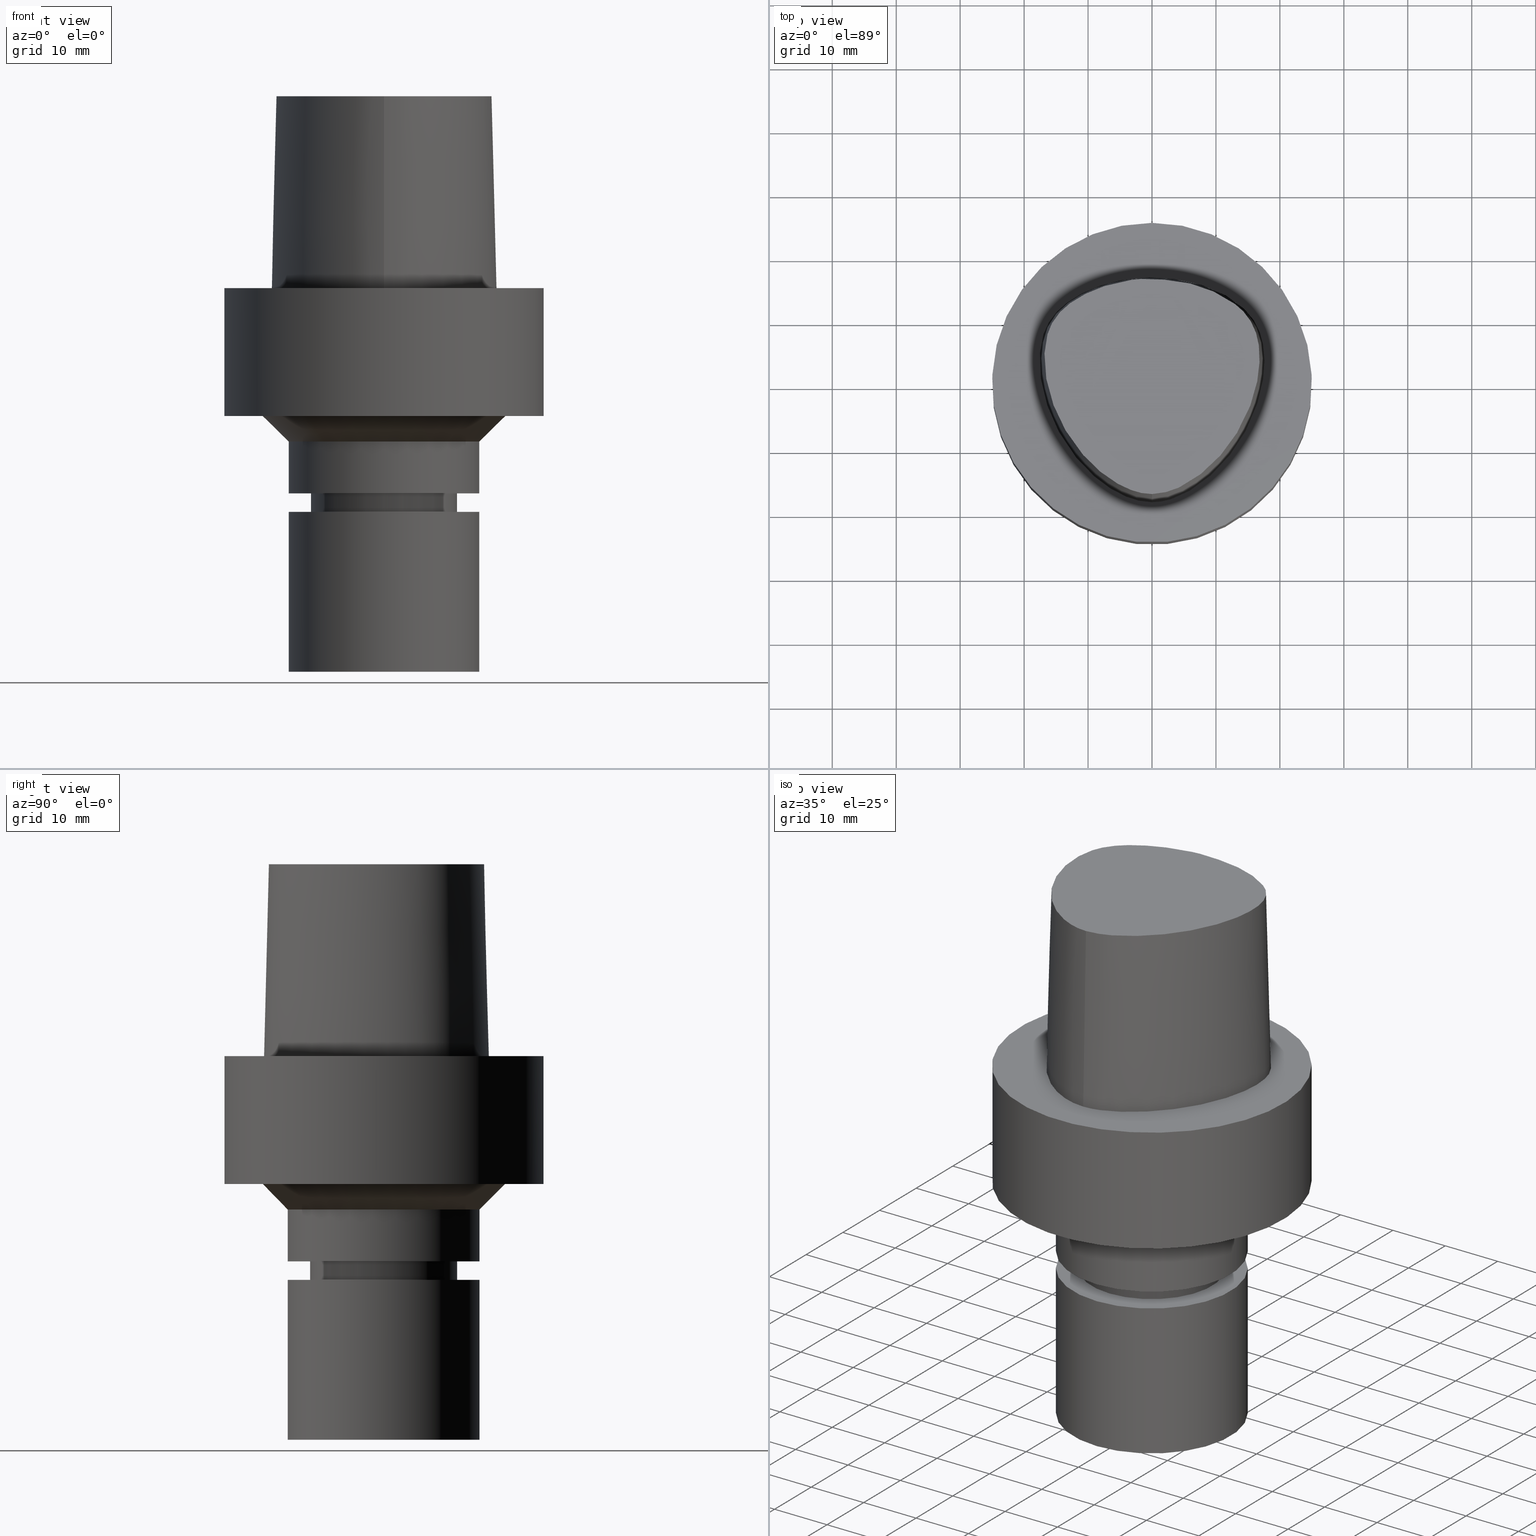
[diagram: canonical four-view strip — front | top / right | iso, engineering-drawing reading convention]
A machine part, canonical four-view strip (front | top / right | iso — engineering-drawing reading convention). The complete STEP part file that produces these views, byte-faithful:
ISO-10303-21;
HEADER;
FILE_DESCRIPTION((''),'1');
FILE_NAME('V:/90_\X2\53D65F9730C730FC30BF\X0\/00_\X2\6DE18DEF30C730FC30BF\X0\/ALL/CAPTO-BKUS\X2\52A05DE556F3\X0\_201801/C5-MEGAER/C5-MEGAER16-60NL.stp','2018-02-01T06:10:48',(''),(''),'Spatial Interop R21 SP3','Kubotek KeyCreator 2011 V10.0.2 (22737)',' ');
FILE_SCHEMA(('automotive_design'));
ENDSEC;
DATA;
#1=MECHANICAL_DESIGN_GEOMETRIC_PRESENTATION_REPRESENTATION(' ',(#14,#15,#16,#17,#18,#19,#20,#21,#22,#23,#24,#25,#26,#27,#28,#29,#30,#31,#32,#33,#34,#35,#36,#37,#38,#39,#40,#41,#42,#43,#44,#45,#46),#10);
#2=PRODUCT_DEFINITION_CONTEXT('',#47,'design');
#3=APPLICATION_PROTOCOL_DEFINITION('INTERNATIONAL STANDARD','automotive_design',1994,#47);
#4=PRODUCT_CATEGORY_RELATIONSHIP('NONE','NONE',#48,#49);
#5=SHAPE_DEFINITION_REPRESENTATION(#50,#51);
#6=PRODUCT_DEFINITION_CONTEXT('',#52,'design');
#7=APPLICATION_PROTOCOL_DEFINITION('INTERNATIONAL STANDARD','automotive_design',1994,#52);
#8=PRODUCT_CATEGORY_RELATIONSHIP('NONE','NONE',#53,#54);
#9=SHAPE_DEFINITION_REPRESENTATION(#55,#56);
#10= (GEOMETRIC_REPRESENTATION_CONTEXT(3)GLOBAL_UNCERTAINTY_ASSIGNED_CONTEXT((#59))GLOBAL_UNIT_ASSIGNED_CONTEXT((#61,#62,#63))REPRESENTATION_CONTEXT('NONE','WORKSPACE'));
#14=STYLED_ITEM('',(#65),#66);
#15=STYLED_ITEM('',(#67),#68);
#16=STYLED_ITEM('',(#69),#70);
#17=STYLED_ITEM('',(#71),#72);
#18=STYLED_ITEM('',(#73),#74);
#19=STYLED_ITEM('',(#75,#76),#77);
#20=STYLED_ITEM('',(#78),#79);
#21=STYLED_ITEM('',(#80,#81),#82);
#22=STYLED_ITEM('',(#83),#84);
#23=STYLED_ITEM('',(#85,#86),#87);
#24=STYLED_ITEM('',(#88,#89),#90);
#25=STYLED_ITEM('',(#91),#92);
#26=STYLED_ITEM('',(#93),#94);
#27=STYLED_ITEM('',(#95,#96),#97);
#28=STYLED_ITEM('',(#98),#99);
#29=STYLED_ITEM('',(#100,#101),#102);
#30=STYLED_ITEM('',(#103,#104),#105);
#31=STYLED_ITEM('',(#106,#107),#108);
#32=STYLED_ITEM('',(#109,#110),#111);
#33=STYLED_ITEM('',(#112),#113);
#34=STYLED_ITEM('',(#114,#115),#116);
#35=STYLED_ITEM('',(#117,#118),#119);
#36=STYLED_ITEM('',(#120),#121);
#37=STYLED_ITEM('',(#122,#123),#124);
#38=STYLED_ITEM('',(#125,#126),#127);
#39=STYLED_ITEM('',(#128,#129),#130);
#40=STYLED_ITEM('',(#131,#132),#133);
#41=STYLED_ITEM('',(#134),#135);
#42=STYLED_ITEM('',(#136),#137);
#43=STYLED_ITEM('',(#138,#139),#140);
#44=STYLED_ITEM('',(#141,#142),#143);
#45=STYLED_ITEM('',(#144),#145);
#46=STYLED_ITEM('',(#146,#147),#148);
#47=APPLICATION_CONTEXT(' ');
#48=PRODUCT_CATEGORY('part','NONE');
#49=PRODUCT_RELATED_PRODUCT_CATEGORY('detail',' ',(#149));
#50=PRODUCT_DEFINITION_SHAPE('NONE','NONE',#150);
#51=ADVANCED_BREP_SHAPE_REPRESENTATION('Unnamed[1]',(#82,#151),#10);
#52=APPLICATION_CONTEXT(' ');
#53=PRODUCT_CATEGORY('part','NONE');
#54=PRODUCT_RELATED_PRODUCT_CATEGORY('detail',' ',(#152));
#55=PRODUCT_DEFINITION_SHAPE('NONE','NONE',#153);
#56=ADVANCED_BREP_SHAPE_REPRESENTATION('Unnamed[1]',(#111,#154),#10);
#59=UNCERTAINTY_MEASURE_WITH_UNIT(LENGTH_MEASURE(1.0E-006),#61,'','');
#61= (CONVERSION_BASED_UNIT('MILLIMETRE',#157)LENGTH_UNIT()NAMED_UNIT(#160));
#62= (NAMED_UNIT(#162)PLANE_ANGLE_UNIT()SI_UNIT($,.RADIAN.));
#63= (NAMED_UNIT(#162)SOLID_ANGLE_UNIT()SI_UNIT($,.STERADIAN.));
#65=PRESENTATION_STYLE_ASSIGNMENT((#168));
#66=EDGE_CURVE('Unnamed[1]',#169,#169,#170,.T.);
#67=PRESENTATION_STYLE_ASSIGNMENT((#171));
#68=EDGE_CURVE('Unnamed[1]',#172,#172,#173,.T.);
#69=PRESENTATION_STYLE_ASSIGNMENT((#174));
#70=EDGE_CURVE('Unnamed[1]',#175,#175,#176,.T.);
#71=PRESENTATION_STYLE_ASSIGNMENT((#177));
#72=EDGE_CURVE('Unnamed[1]',#178,#178,#179,.T.);
#73=PRESENTATION_STYLE_ASSIGNMENT((#180));
#74=EDGE_CURVE('Unnamed[1]',#181,#181,#182,.T.);
#75=PRESENTATION_STYLE_ASSIGNMENT((#183));
#76=PRESENTATION_STYLE_ASSIGNMENT((#184));
#77=ADVANCED_FACE('Unnamed[1]',(#185,#186),#187,.T.);
#78=PRESENTATION_STYLE_ASSIGNMENT((#188));
#79=EDGE_CURVE('Unnamed[1]',#189,#189,#190,.T.);
#80=PRESENTATION_STYLE_ASSIGNMENT((#191));
#81=PRESENTATION_STYLE_ASSIGNMENT((#192));
#82=MANIFOLD_SOLID_BREP('Unnamed[1]',#193);
#83=PRESENTATION_STYLE_ASSIGNMENT((#194));
#84=EDGE_CURVE('Unnamed[1]',#195,#195,#196,.T.);
#85=PRESENTATION_STYLE_ASSIGNMENT((#197));
#86=PRESENTATION_STYLE_ASSIGNMENT((#198));
#87=ADVANCED_FACE('Unnamed[1]',(#199),#200,.F.);
#88=PRESENTATION_STYLE_ASSIGNMENT((#201));
#89=PRESENTATION_STYLE_ASSIGNMENT((#202));
#90=ADVANCED_FACE('Unnamed[1]',(#203,#204),#205,.T.);
#91=PRESENTATION_STYLE_ASSIGNMENT((#206));
#92=EDGE_CURVE('Unnamed[1]',#207,#207,#208,.T.);
#93=PRESENTATION_STYLE_ASSIGNMENT((#209));
#94=EDGE_CURVE('Unnamed[1]',#210,#210,#211,.T.);
#95=PRESENTATION_STYLE_ASSIGNMENT((#212));
#96=PRESENTATION_STYLE_ASSIGNMENT((#213));
#97=ADVANCED_FACE('Unnamed[1]',(#214,#215),#216,.T.);
#98=PRESENTATION_STYLE_ASSIGNMENT((#217));
#99=EDGE_CURVE('Unnamed[1]',#218,#189,#219,.T.);
#100=PRESENTATION_STYLE_ASSIGNMENT((#220));
#101=PRESENTATION_STYLE_ASSIGNMENT((#221));
#102=ADVANCED_FACE('Unnamed[1]',(#222),#223,.T.);
#103=PRESENTATION_STYLE_ASSIGNMENT((#224));
#104=PRESENTATION_STYLE_ASSIGNMENT((#225));
#105=ADVANCED_FACE('Unnamed[1]',(#226),#227,.T.);
#106=PRESENTATION_STYLE_ASSIGNMENT((#228));
#107=PRESENTATION_STYLE_ASSIGNMENT((#229));
#108=ADVANCED_FACE('Unnamed[1]',(#230),#231,.T.);
#109=PRESENTATION_STYLE_ASSIGNMENT((#232));
#110=PRESENTATION_STYLE_ASSIGNMENT((#233));
#111=MANIFOLD_SOLID_BREP('Unnamed[1]',#234);
#112=PRESENTATION_STYLE_ASSIGNMENT((#235));
#113=EDGE_CURVE('Unnamed[1]',#236,#236,#237,.T.);
#114=PRESENTATION_STYLE_ASSIGNMENT((#238));
#115=PRESENTATION_STYLE_ASSIGNMENT((#239));
#116=ADVANCED_FACE('Unnamed[1]',(#240,#241),#242,.T.);
#117=PRESENTATION_STYLE_ASSIGNMENT((#243));
#118=PRESENTATION_STYLE_ASSIGNMENT((#244));
#119=ADVANCED_FACE('Unnamed[1]',(#245,#246),#247,.T.);
#120=PRESENTATION_STYLE_ASSIGNMENT((#248));
#121=EDGE_CURVE('Unnamed[1]',#218,#218,#249,.T.);
#122=PRESENTATION_STYLE_ASSIGNMENT((#250));
#123=PRESENTATION_STYLE_ASSIGNMENT((#251));
#124=ADVANCED_FACE('Unnamed[1]',(#252,#253),#254,.T.);
#125=PRESENTATION_STYLE_ASSIGNMENT((#255));
#126=PRESENTATION_STYLE_ASSIGNMENT((#256));
#127=ADVANCED_FACE('Unnamed[1]',(#257,#258),#259,.T.);
#128=PRESENTATION_STYLE_ASSIGNMENT((#260));
#129=PRESENTATION_STYLE_ASSIGNMENT((#261));
#130=ADVANCED_FACE('Unnamed[1]',(#262),#263,.T.);
#131=PRESENTATION_STYLE_ASSIGNMENT((#264));
#132=PRESENTATION_STYLE_ASSIGNMENT((#265));
#133=ADVANCED_FACE('Unnamed[1]',(#266,#267),#268,.T.);
#134=PRESENTATION_STYLE_ASSIGNMENT((#269));
#135=EDGE_CURVE('Unnamed[1]',#270,#270,#271,.T.);
#136=PRESENTATION_STYLE_ASSIGNMENT((#272));
#137=EDGE_CURVE('Unnamed[1]',#273,#273,#274,.T.);
#138=PRESENTATION_STYLE_ASSIGNMENT((#275));
#139=PRESENTATION_STYLE_ASSIGNMENT((#276));
#140=ADVANCED_FACE('Unnamed[1]',(#277,#278),#279,.T.);
#141=PRESENTATION_STYLE_ASSIGNMENT((#280));
#142=PRESENTATION_STYLE_ASSIGNMENT((#281));
#143=ADVANCED_FACE('Unnamed[1]',(#282,#283),#284,.T.);
#144=PRESENTATION_STYLE_ASSIGNMENT((#285));
#145=EDGE_CURVE('Unnamed[1]',#286,#286,#287,.T.);
#146=PRESENTATION_STYLE_ASSIGNMENT((#288));
#147=PRESENTATION_STYLE_ASSIGNMENT((#289));
#148=ADVANCED_FACE('Unnamed[1]',(#290,#291),#292,.T.);
#149=PRODUCT('Unnamed[1]','Unnamed[1]','PART-Unnamed[1]-DESC',(#293));
#150=PRODUCT_DEFINITION('NONE','NONE',#294,#2);
#151=AXIS2_PLACEMENT_3D('',#295,#296,#297);
#152=PRODUCT('Unnamed[1]','Unnamed[1]','PART-Unnamed[1]-DESC',(#298));
#153=PRODUCT_DEFINITION('NONE','NONE',#299,#6);
#154=AXIS2_PLACEMENT_3D('',#300,#301,#302);
#157=LENGTH_MEASURE_WITH_UNIT(LENGTH_MEASURE(1.0),#303);
#160=DIMENSIONAL_EXPONENTS(1.0,0.0,0.0,0.0,0.0,0.0,0.0);
#162=DIMENSIONAL_EXPONENTS(0.0,0.0,0.0,0.0,0.0,0.0,0.0);
#168=CURVE_STYLE('',#304,POSITIVE_LENGTH_MEASURE(1000.0),#305);
#169=VERTEX_POINT('',#306);
#170=CIRCLE('',#307,15.0000000000001);
#171=CURVE_STYLE('',#308,POSITIVE_LENGTH_MEASURE(1000.0),#309);
#172=VERTEX_POINT('',#310);
#173=CIRCLE('',#311,9.89999999999959);
#174=CURVE_STYLE('',#312,POSITIVE_LENGTH_MEASURE(1000.0),#313);
#175=VERTEX_POINT('',#314);
#176=CIRCLE('',#315,19.0000000000004);
#177=CURVE_STYLE('',#316,POSITIVE_LENGTH_MEASURE(1000.0),#317);
#178=VERTEX_POINT('',#318);
#179=CIRCLE('',#319,11.5000000000021);
#180=CURVE_STYLE('',#320,POSITIVE_LENGTH_MEASURE(1000.0),#321);
#181=VERTEX_POINT('',#322);
#182=CIRCLE('',#323,14.9999999999998);
#183=SURFACE_STYLE_USAGE(.BOTH.,#324);
#184=CURVE_STYLE('',#325,POSITIVE_LENGTH_MEASURE(1000.0),#326);
#185=FACE_BOUND('',#327,.T.);
#186=FACE_OUTER_BOUND('',#328,.T.);
#187=PLANE('',#329);
#188=CURVE_STYLE('',#330,POSITIVE_LENGTH_MEASURE(1000.0),#331);
#189=VERTEX_POINT('',#332);
#190=B_SPLINE_CURVE_WITH_KNOTS('',3,(#333,#334,#335,#336,#337,#338,#339,#340,#341,#342,#343,#344,#345,#346,#347,#348,#349,#350,#351,#352,#353,#354,#355,#356,#357,#358,#359,#360,#361,#362,#363,#364,#365,#366,#367,#368,#369,#370,#371,#372,#373,#374,#375,#376,#377,#378,#379,#380,#381),.UNSPECIFIED.,.T.,.F.,(4,1,1,1,1,1,1,1,1,1,1,1,1,1,1,1,1,1,1,1,1,1,1,1,1,1,1,1,1,1,1,1,1,1,1,1,1,1,1,1,1,1,1,1,1,1,4),(0.0,0.023135829350767,0.046149078767971,0.068686553945372,0.09058948843834,0.11187442371895,0.132659030725504,0.153111474090064,0.173428097006866,0.193812703683075,0.214465113334926,0.235566638619369,0.257256396596226,0.279590584305387,0.302476275092963,0.325611612149197,0.348735785989546,0.371826971229282,0.39455923139207,0.416669726533691,0.438154204641074,0.459103554741756,0.479643077908811,0.50010643098029,0.520399705216369,0.54092682403315,0.561890845659905,0.583370991138857,0.605476574502583,0.62820876493626,0.65131550684809,0.674427687768046,0.697531018602722,0.720425222070344,0.742763449220249,0.764449723968905,0.785551037463572,0.806204240231889,0.826588983931571,0.846905402970388,0.867357715119018,0.88814171778586,0.909429413217286,0.931324749020081,0.953885589892717,0.976862732393428,1.0),.UNSPECIFIED.);
#191=SURFACE_STYLE_USAGE(.BOTH.,#382);
#192=CURVE_STYLE('',#383,POSITIVE_LENGTH_MEASURE(1000.0),#384);
#193=CLOSED_SHELL('',(#119,#124,#90,#140,#116,#77,#127,#133,#97,#143,#102,#130,#87));
#194=CURVE_STYLE('',#385,POSITIVE_LENGTH_MEASURE(1000.0),#386);
#195=VERTEX_POINT('',#387);
#196=CIRCLE('',#388,25.0);
#197=SURFACE_STYLE_USAGE(.BOTH.,#389);
#198=CURVE_STYLE('',#390,POSITIVE_LENGTH_MEASURE(1000.0),#391);
#199=FACE_OUTER_BOUND('',#392,.T.);
#200=B_SPLINE_SURFACE_WITH_KNOTS('',3,3,((#393,#394,#395,#396),(#397,#398,#399,#400),(#401,#402,#403,#404),(#405,#406,#407,#408),(#409,#410,#411,#412),(#413,#414,#415,#416),(#417,#418,#419,#420),(#421,#422,#423,#424),(#425,#426,#427,#428),(#429,#430,#431,#432),(#433,#434,#435,#436),(#437,#438,#439,#440),(#441,#442,#443,#444),(#445,#446,#447,#448),(#449,#450,#451,#452),(#453,#454,#455,#456),(#457,#458,#459,#460),(#461,#462,#463,#464),(#465,#466,#467,#468),(#469,#470,#471,#472),(#473,#474,#475,#476),(#477,#478,#479,#480),(#481,#482,#483,#484),(#485,#486,#487,#488),(#489,#490,#491,#492),(#493,#494,#495,#496),(#497,#498,#499,#500),(#501,#502,#503,#504),(#505,#506,#507,#508),(#509,#510,#511,#512),(#513,#514,#515,#516),(#517,#518,#519,#520),(#521,#522,#523,#524),(#525,#526,#527,#528),(#529,#530,#531,#532),(#533,#534,#535,#536),(#537,#538,#539,#540),(#541,#542,#543,#544),(#545,#546,#547,#548),(#549,#550,#551,#552),(#553,#554,#555,#556),(#557,#558,#559,#560),(#561,#562,#563,#564),(#565,#566,#567,#568),(#569,#570,#571,#572),(#573,#574,#575,#576),(#577,#578,#579,#580),(#581,#582,#583,#584),(#585,#586,#587,#588),(#589,#590,#591,#592),(#593,#594,#595,#596),(#597,#598,#599,#600),(#601,#602,#603,#604),(#605,#606,#607,#608),(#609,#610,#611,#612),(#613,#614,#615,#616),(#617,#618,#619,#620),(#621,#622,#623,#624),(#625,#626,#627,#628),(#629,#630,#631,#632),(#633,#634,#635,#636),(#637,#638,#639,#640),(#641,#642,#643,#644),(#645,#646,#647,#648),(#649,#650,#651,#652),(#653,#654,#655,#656),(#657,#658,#659,#660),(#661,#662,#663,#664),(#665,#666,#667,#668),(#669,#670,#671,#672),(#673,#674,#675,#676),(#677,#678,#679,#680),(#681,#682,#683,#684),(#685,#686,#687,#688),(#689,#690,#691,#692),(#693,#694,#695,#696),(#697,#698,#699,#700),(#701,#702,#703,#704),(#705,#706,#707,#708),(#709,#710,#711,#712),(#713,#714,#715,#716),(#717,#718,#719,#720),(#721,#722,#723,#724),(#725,#726,#727,#728),(#729,#730,#731,#732),(#733,#734,#735,#736),(#737,#738,#739,#740),(#741,#742,#743,#744),(#745,#746,#747,#748),(#749,#750,#751,#752),(#753,#754,#755,#756),(#757,#758,#759,#760),(#761,#762,#763,#764),(#765,#766,#767,#768),(#769,#770,#771,#772),(#773,#774,#775,#776)),.UNSPECIFIED.,.T.,.F.,.F.,(4,2,2,2,2,2,2,2,2,2,2,2,2,2,2,2,2,2,2,2,2,2,2,2,2,2,2,2,2,2,2,2,2,2,2,2,2,2,2,2,2,2,2,2,2,2,2,4),(4,4),(0.0,0.000251979175567,0.023135829350767,0.046149078767971,0.068686553945372,0.09058948843834,0.11187442371895,0.132659030725504,0.153111474090064,0.173428097006866,0.193812703683075,0.214465113334926,0.235566638619369,0.257256396596226,0.279590584305387,0.302476275092963,0.325611612149197,0.348735785989546,0.371826971229282,0.39455923139207,0.416669726533691,0.438154204641074,0.459103554741756,0.479643077908811,0.50010643098029,0.520399705216369,0.54092682403315,0.561890845659905,0.583370991138857,0.605476574502583,0.62820876493626,0.65131550684809,0.674427687768046,0.697531018602722,0.720425222070344,0.742763449220249,0.764449723968905,0.785551037463572,0.806204240231889,0.826588983931571,0.846905402970388,0.867357715119018,0.88814171778586,0.909429413217286,0.931324749020081,0.953885589892717,0.976862732393428,1.0),(0.0,1.0),.UNSPECIFIED.);
#201=SURFACE_STYLE_USAGE(.BOTH.,#777);
#202=CURVE_STYLE('',#778,POSITIVE_LENGTH_MEASURE(1000.0),#779);
#203=FACE_BOUND('',#780,.T.);
#204=FACE_OUTER_BOUND('',#781,.T.);
#205=PLANE('',#782);
#206=CURVE_STYLE('',#783,POSITIVE_LENGTH_MEASURE(1000.0),#784);
#207=VERTEX_POINT('',#785);
#208=CIRCLE('',#786,10.9999999999999);
#209=CURVE_STYLE('',#787,POSITIVE_LENGTH_MEASURE(1000.0),#788);
#210=VERTEX_POINT('',#789);
#211=CIRCLE('',#790,11.0000000000002);
#212=SURFACE_STYLE_USAGE(.BOTH.,#791);
#213=CURVE_STYLE('',#792,POSITIVE_LENGTH_MEASURE(1000.0),#793);
#214=FACE_BOUND('',#794,.T.);
#215=FACE_BOUND('',#795,.T.);
#216=CYLINDRICAL_SURFACE('',#796,11.0000000000001);
#217=CURVE_STYLE('',#797,POSITIVE_LENGTH_MEASURE(1000.0),#798);
#218=VERTEX_POINT('',#799);
#219=B_SPLINE_CURVE_WITH_KNOTS('',3,(#800,#801,#802,#803),.UNSPECIFIED.,.F.,.F.,(4,4),(0.0,1.0),.UNSPECIFIED.);
#220=SURFACE_STYLE_USAGE(.BOTH.,#804);
#221=CURVE_STYLE('',#805,POSITIVE_LENGTH_MEASURE(1000.0),#806);
#222=FACE_OUTER_BOUND('',#807,.T.);
#223=PLANE('',#808);
#224=SURFACE_STYLE_USAGE(.BOTH.,#809);
#225=CURVE_STYLE('',#810,POSITIVE_LENGTH_MEASURE(1000.0),#811);
#226=FACE_OUTER_BOUND('',#812,.T.);
#227=PLANE('',#813);
#228=SURFACE_STYLE_USAGE(.BOTH.,#814);
#229=CURVE_STYLE('',#815,POSITIVE_LENGTH_MEASURE(1000.0),#816);
#230=FACE_OUTER_BOUND('',#817,.T.);
#231=PLANE('',#818);
#232=SURFACE_STYLE_USAGE(.BOTH.,#819);
#233=CURVE_STYLE('',#820,POSITIVE_LENGTH_MEASURE(1000.0),#821);
#234=CLOSED_SHELL('',(#105,#108,#148));
#235=CURVE_STYLE('',#822,POSITIVE_LENGTH_MEASURE(1000.0),#823);
#236=VERTEX_POINT('',#824);
#237=CIRCLE('',#825,25.0);
#238=SURFACE_STYLE_USAGE(.BOTH.,#826);
#239=CURVE_STYLE('',#827,POSITIVE_LENGTH_MEASURE(1000.0),#828);
#240=FACE_BOUND('',#829,.T.);
#241=FACE_BOUND('',#830,.T.);
#242=CYLINDRICAL_SURFACE('',#831,14.9999999999999);
#243=SURFACE_STYLE_USAGE(.BOTH.,#832);
#244=CURVE_STYLE('',#833,POSITIVE_LENGTH_MEASURE(1000.0),#834);
#245=FACE_OUTER_BOUND('',#835,.T.);
#246=FACE_BOUND('',#836,.T.);
#247=PLANE('',#837);
#248=CURVE_STYLE('',#838,POSITIVE_LENGTH_MEASURE(1000.0),#839);
#249=B_SPLINE_CURVE_WITH_KNOTS('',3,(#840,#841,#842,#843,#844,#845,#846,#847,#848,#849,#850,#851,#852,#853,#854,#855,#856,#857,#858,#859,#860,#861,#862,#863,#864,#865,#866,#867,#868,#869,#870,#871,#872,#873,#874,#875,#876,#877,#878,#879,#880,#881,#882,#883,#884,#885,#886,#887,#888,#889,#890,#891),.UNSPECIFIED.,.T.,.F.,(4,3,1,1,1,1,1,1,1,1,1,1,1,1,1,1,1,1,1,1,1,1,1,1,1,1,1,1,1,1,1,1,1,1,1,1,1,1,1,1,1,1,1,1,1,1,1,4),(1.3649724787312E-014,0.000251979175569,0.023064084362549,0.046003582878944,0.068504181899514,0.090417859573715,0.111730467452593,0.132560049659696,0.153071509572437,0.173451528056674,0.193897288981708,0.214601246514386,0.235737108542665,0.257436051133125,0.279755901268811,0.302581107070726,0.325645832659338,0.348711969385417,0.371735041893596,0.394416875239587,0.416534755913113,0.438033887711147,0.459018888245884,0.479608932981898,0.499704912611684,0.520351139004295,0.540936759940389,0.561925693222472,0.583454395144715,0.605583556980323,0.628244471201998,0.651247558302416,0.674300629342869,0.69734836049745,0.720172940639181,0.74251195022476,0.76421931532038,0.785350596718499,0.80605412660848,0.826500412756753,0.846880503448092,0.867392290784713,0.888219433845538,0.909522100637064,0.931425509445934,0.95396034955246,0.976915152358003,1.0),.UNSPECIFIED.);
#250=SURFACE_STYLE_USAGE(.BOTH.,#892);
#251=CURVE_STYLE('',#893,POSITIVE_LENGTH_MEASURE(1000.0),#894);
#252=FACE_BOUND('',#895,.T.);
#253=FACE_BOUND('',#896,.T.);
#254=CYLINDRICAL_SURFACE('',#897,25.0);
#255=SURFACE_STYLE_USAGE(.BOTH.,#898);
#256=CURVE_STYLE('',#899,POSITIVE_LENGTH_MEASURE(1000.0),#900);
#257=FACE_BOUND('',#901,.T.);
#258=FACE_BOUND('',#902,.T.);
#259=CYLINDRICAL_SURFACE('',#903,11.4999999999964);
#260=SURFACE_STYLE_USAGE(.BOTH.,#904);
#261=CURVE_STYLE('',#905,POSITIVE_LENGTH_MEASURE(1000.0),#906);
#262=FACE_OUTER_BOUND('',#907,.T.);
#263=PLANE('',#908);
#264=SURFACE_STYLE_USAGE(.BOTH.,#909);
#265=CURVE_STYLE('',#910,POSITIVE_LENGTH_MEASURE(1000.0),#911);
#266=FACE_BOUND('',#912,.T.);
#267=FACE_BOUND('',#913,.T.);
#268=CONICAL_SURFACE('',#914,11.250000000001,1.04719755118914);
#269=CURVE_STYLE('',#915,POSITIVE_LENGTH_MEASURE(1000.0),#916);
#270=VERTEX_POINT('',#917);
#271=CIRCLE('',#918,15.0);
#272=CURVE_STYLE('',#919,POSITIVE_LENGTH_MEASURE(1000.0),#920);
#273=VERTEX_POINT('',#921);
#274=CIRCLE('',#922,15.0000000000001);
#275=SURFACE_STYLE_USAGE(.BOTH.,#923);
#276=CURVE_STYLE('',#924,POSITIVE_LENGTH_MEASURE(1000.0),#925);
#277=FACE_BOUND('',#926,.T.);
#278=FACE_BOUND('',#927,.T.);
#279=CONICAL_SURFACE('',#928,17.0000000000002,0.785398163397423);
#280=SURFACE_STYLE_USAGE(.BOTH.,#929);
#281=CURVE_STYLE('',#930,POSITIVE_LENGTH_MEASURE(1000.0),#931);
#282=FACE_BOUND('',#932,.T.);
#283=FACE_BOUND('',#933,.T.);
#284=CONICAL_SURFACE('',#934,10.4499999999999,0.523598775598226);
#285=CURVE_STYLE('',#935,POSITIVE_LENGTH_MEASURE(1000.0),#936);
#286=VERTEX_POINT('',#937);
#287=CIRCLE('',#938,11.4999999999907);
#288=SURFACE_STYLE_USAGE(.BOTH.,#939);
#289=CURVE_STYLE('',#940,POSITIVE_LENGTH_MEASURE(1000.0),#941);
#290=FACE_BOUND('',#942,.T.);
#291=FACE_BOUND('',#943,.T.);
#292=CYLINDRICAL_SURFACE('',#944,15.0);
#293=PRODUCT_CONTEXT('',#47,'mechanical');
#294=PRODUCT_DEFINITION_FORMATION_WITH_SPECIFIED_SOURCE(' ','NONE',#149,.NOT_KNOWN.);
#295=CARTESIAN_POINT('',(0.0,0.0,0.0));
#296=DIRECTION('',(0.0,0.0,1.0));
#297=DIRECTION('',(1.0,0.0,0.0));
#298=PRODUCT_CONTEXT('',#52,'mechanical');
#299=PRODUCT_DEFINITION_FORMATION_WITH_SPECIFIED_SOURCE(' ','NONE',#152,.NOT_KNOWN.);
#300=CARTESIAN_POINT('',(0.0,0.0,0.0));
#301=DIRECTION('',(0.0,0.0,1.0));
#302=DIRECTION('',(1.0,0.0,0.0));
#303= (NAMED_UNIT(#160)LENGTH_UNIT()SI_UNIT(.MILLI.,.METRE.));
#304=DRAUGHTING_PRE_DEFINED_CURVE_FONT('continuous');
#305=COLOUR_RGB('',0.0,1.0,0.0);
#306=CARTESIAN_POINT('',(1.46957615897686E-015,15.0000000000001,-24.0000000000005));
#307=AXIS2_PLACEMENT_3D('',#946,#947,#948);
#308=DRAUGHTING_PRE_DEFINED_CURVE_FONT('continuous');
#309=COLOUR_RGB('',0.0,1.0,0.0);
#310=CARTESIAN_POINT('',(3.13509580581717E-015,9.89999999999959,-51.1999999999992));
#311=AXIS2_PLACEMENT_3D('',#949,#950,#951);
#312=DRAUGHTING_PRE_DEFINED_CURVE_FONT('continuous');
#313=COLOUR_RGB('',0.0,1.0,0.0);
#314=CARTESIAN_POINT('',(1.22464679914735E-015,19.0000000000004,-20.0));
#315=AXIS2_PLACEMENT_3D('',#952,#953,#954);
#316=DRAUGHTING_PRE_DEFINED_CURVE_FONT('continuous');
#317=COLOUR_RGB('',0.0,1.0,0.0);
#318=CARTESIAN_POINT('',(2.32139913239222E-015,11.5000000000021,-37.9113248653974));
#319=AXIS2_PLACEMENT_3D('',#955,#956,#957);
#320=DRAUGHTING_PRE_DEFINED_CURVE_FONT('continuous');
#321=COLOUR_RGB('',0.0,1.0,0.0);
#322=CARTESIAN_POINT('',(1.96555811263146E-015,14.9999999999998,-32.0999999999994));
#323=AXIS2_PLACEMENT_3D('',#958,#959,#960);
#324=SURFACE_SIDE_STYLE('',(#961));
#325=DRAUGHTING_PRE_DEFINED_CURVE_FONT('continuous');
#326=COLOUR_RGB('',0.0,1.0,0.0);
#327=EDGE_LOOP('',(#962));
#328=EDGE_LOOP('',(#963));
#329=AXIS2_PLACEMENT_3D('',#964,#965,#966);
#330=DRAUGHTING_PRE_DEFINED_CURVE_FONT('continuous');
#331=COLOUR_RGB('',0.0,1.0,0.0);
#332=CARTESIAN_POINT('',(-2.78602932413959E-015,-17.9423775546504,30.0));
#333=CARTESIAN_POINT('',(-2.78602932413959E-015,-17.9423775546504,30.0));
#334=CARTESIAN_POINT('',(-0.814120797978075,-17.9643878187761,30.0));
#335=CARTESIAN_POINT('',(-2.44279318309434,-17.6670056599032,30.0));
#336=CARTESIAN_POINT('',(-4.69065600148019,-16.7591312239375,30.0));
#337=CARTESIAN_POINT('',(-6.73157621234646,-15.527654017863,30.0));
#338=CARTESIAN_POINT('',(-8.55606567082544,-14.0980586872352,30.0));
#339=CARTESIAN_POINT('',(-10.1771160862307,-12.5294920614813,30.0));
#340=CARTESIAN_POINT('',(-11.6098311271326,-10.8549672983455,30.0));
#341=CARTESIAN_POINT('',(-12.8723444784573,-9.09084166630711,30.0));
#342=CARTESIAN_POINT('',(-13.9762474627415,-7.23982146073079,30.0));
#343=CARTESIAN_POINT('',(-14.9241349859217,-5.29636298798721,30.0));
#344=CARTESIAN_POINT('',(-15.7132736469777,-3.2533357158659,30.0));
#345=CARTESIAN_POINT('',(-16.3266313043064,-1.10238675181427,30.0));
#346=CARTESIAN_POINT('',(-16.7327867713303,1.15808256309649,30.0));
#347=CARTESIAN_POINT('',(-16.8801613787167,3.51564121263174,30.0));
#348=CARTESIAN_POINT('',(-16.6855836228514,5.92229128835704,30.0));
#349=CARTESIAN_POINT('',(-16.0281509658443,8.29517868854449,30.0));
#350=CARTESIAN_POINT('',(-14.6640408300166,10.3669104243273,30.0));
#351=CARTESIAN_POINT('',(-12.8332969997264,11.9882678763451,30.0));
#352=CARTESIAN_POINT('',(-10.7856401290832,13.2404482750702,30.0));
#353=CARTESIAN_POINT('',(-8.65298741417579,14.19764142693,30.0));
#354=CARTESIAN_POINT('',(-6.48957622042645,14.9235651413533,30.0));
#355=CARTESIAN_POINT('',(-4.30784954842127,15.2925809723717,30.0));
#356=CARTESIAN_POINT('',(-2.16867899857279,15.8525920055235,30.0));
#357=CARTESIAN_POINT('',(-0.0054980597270801,15.506533819507,30.0));
#358=CARTESIAN_POINT('',(2.15423811148254,15.6758925558313,30.0));
#359=CARTESIAN_POINT('',(4.31367631773855,15.3366483013887,30.0));
#360=CARTESIAN_POINT('',(6.49156913463884,14.9221231752341,30.0));
#361=CARTESIAN_POINT('',(8.65317555043793,14.199841033848,30.0));
#362=CARTESIAN_POINT('',(10.7855591317115,13.2388028674922,30.0));
#363=CARTESIAN_POINT('',(12.8289446834375,11.9844078416963,30.0));
#364=CARTESIAN_POINT('',(14.6809214389867,10.37934328945,30.0));
#365=CARTESIAN_POINT('',(15.9964040236072,8.28000660116028,30.0));
#366=CARTESIAN_POINT('',(16.6999197177274,5.92601467018833,30.0));
#367=CARTESIAN_POINT('',(16.8785470495877,3.51485696104406,30.0));
#368=CARTESIAN_POINT('',(16.7308989568545,1.15864914401017,30.0));
#369=CARTESIAN_POINT('',(16.3270119409732,-1.10262794482627,30.0));
#370=CARTESIAN_POINT('',(15.7138840293007,-3.25349612648562,30.0));
#371=CARTESIAN_POINT('',(14.9244427410538,-5.29647704660135,30.0));
#372=CARTESIAN_POINT('',(13.9756636589241,-7.23950698099948,30.0));
#373=CARTESIAN_POINT('',(12.8724663956831,-9.09088034657936,30.0));
#374=CARTESIAN_POINT('',(11.6099597844916,-10.8551381410581,30.0));
#375=CARTESIAN_POINT('',(10.1759690661341,-12.5282962499649,30.0));
#376=CARTESIAN_POINT('',(8.55887653552809,-14.1013446755591,30.0));
#377=CARTESIAN_POINT('',(6.72595297076831,-15.5205541881092,30.0));
#378=CARTESIAN_POINT('',(4.69995925068727,-16.7729025475684,30.0));
#379=CARTESIAN_POINT('',(2.43523789305481,-17.660279021922,30.0));
#380=CARTESIAN_POINT('',(0.814171408394767,-17.9203659222405,30.0));
#381=CARTESIAN_POINT('',(-2.83508942413959E-015,-17.9423775546504,30.0));
#382=SURFACE_SIDE_STYLE('',(#967));
#383=DRAUGHTING_PRE_DEFINED_CURVE_FONT('continuous');
#384=COLOUR_RGB('',0.0,1.0,0.0);
#385=DRAUGHTING_PRE_DEFINED_CURVE_FONT('continuous');
#386=COLOUR_RGB('',0.0,1.0,0.0);
#387=CARTESIAN_POINT('',(1.22464679914735E-015,25.0,-20.0));
#388=AXIS2_PLACEMENT_3D('',#968,#969,#970);
#389=SURFACE_SIDE_STYLE('',(#971));
#390=DRAUGHTING_PRE_DEFINED_CURVE_FONT('continuous');
#391=COLOUR_RGB('',0.0,1.0,0.0);
#392=EDGE_LOOP('',(#972,#973,#974,#975));
#393=CARTESIAN_POINT('',(-0.00144332333831829,-18.693734925237,0.0));
#394=CARTESIAN_POINT('',(-0.000962215558880259,-18.4432824683748,10.0));
#395=CARTESIAN_POINT('',(-0.000481107779441228,-18.1928300115126,20.0));
#396=CARTESIAN_POINT('',(-2.78602932413959E-015,-17.9423775546504,30.0));
#397=CARTESIAN_POINT('',(-0.0107097733408023,-18.6937739851458,0.0));
#398=CARTESIAN_POINT('',(-0.0100954592068633,-18.4433884150843,10.0));
#399=CARTESIAN_POINT('',(-0.00948114507292523,-18.1930028450229,20.0));
#400=CARTESIAN_POINT('',(-0.0088668309389872,-17.9426172749614,30.0));
#401=CARTESIAN_POINT('',(-0.0199759398304303,-18.6937986220233,0.0));
#402=CARTESIAN_POINT('',(-0.0192286078889683,-18.443477981273,10.0));
#403=CARTESIAN_POINT('',(-0.0184812759475062,-18.1931573405227,20.0));
#404=CARTESIAN_POINT('',(-0.0177339440060442,-17.9428366997724,30.0));
#405=CARTESIAN_POINT('',(-0.87073259155424,-18.6947332287258,0.0));
#406=CARTESIAN_POINT('',(-0.857789307239019,-18.4501991588251,10.0));
#407=CARTESIAN_POINT('',(-0.844846022923799,-18.2056650889244,20.0));
#408=CARTESIAN_POINT('',(-0.831902738608578,-17.9611310190237,30.0));
#409=CARTESIAN_POINT('',(-1.7132146687811,-18.5561236138986,0.0));
#410=CARTESIAN_POINT('',(-1.68853934634042,-18.3083565318266,10.0));
#411=CARTESIAN_POINT('',(-1.66386402389973,-18.0605894497547,20.0));
#412=CARTESIAN_POINT('',(-1.63918870145905,-17.8128223676827,30.0));
#413=CARTESIAN_POINT('',(-3.34678034951543,-18.1076178270182,0.0));
#414=CARTESIAN_POINT('',(-3.29783533712276,-17.8588133839209,10.0));
#415=CARTESIAN_POINT('',(-3.2488903247301,-17.6100089408236,20.0));
#416=CARTESIAN_POINT('',(-3.19994531233743,-17.3612044977262,30.0));
#417=CARTESIAN_POINT('',(-4.13763295357352,-17.7966649911857,0.0));
#418=CARTESIAN_POINT('',(-4.0761172500848,-17.5501178452923,10.0));
#419=CARTESIAN_POINT('',(-4.01460154659607,-17.3035706993988,20.0));
#420=CARTESIAN_POINT('',(-3.95308584310734,-17.0570235535054,30.0));
#421=CARTESIAN_POINT('',(-5.64401230436313,-17.0611782657116,0.0));
#422=CARTESIAN_POINT('',(-5.55832797221116,-16.8204477111443,10.0));
#423=CARTESIAN_POINT('',(-5.47264364005918,-16.579717156577,20.0));
#424=CARTESIAN_POINT('',(-5.38695930790721,-16.3389866020097,30.0));
#425=CARTESIAN_POINT('',(-6.36074874666199,-16.6390568826018,0.0));
#426=CARTESIAN_POINT('',(-6.26345492796379,-16.4018805948509,10.0));
#427=CARTESIAN_POINT('',(-6.16616110926559,-16.1647043071,20.0));
#428=CARTESIAN_POINT('',(-6.06886729056739,-15.9275280193492,30.0));
#429=CARTESIAN_POINT('',(-7.71193183747336,-15.717785465073,0.0));
#430=CARTESIAN_POINT('',(-7.59368812813217,-15.4910037252687,10.0));
#431=CARTESIAN_POINT('',(-7.47544441879098,-15.2642219854644,20.0));
#432=CARTESIAN_POINT('',(-7.35720070944979,-15.0374402456601,30.0));
#433=CARTESIAN_POINT('',(-8.34816817062737,-15.221133209089,0.0));
#434=CARTESIAN_POINT('',(-8.22051571454826,-15.00109827281,10.0));
#435=CARTESIAN_POINT('',(-8.09286325846916,-14.7810633365309,20.0));
#436=CARTESIAN_POINT('',(-7.96521080239006,-14.5610284002518,30.0));
#437=CARTESIAN_POINT('',(-9.54864267958622,-14.1801662707339,0.0));
#438=CARTESIAN_POINT('',(-9.40278907714181,-13.973781486088,10.0));
#439=CARTESIAN_POINT('',(-9.2569354746974,-13.7673967014422,20.0));
#440=CARTESIAN_POINT('',(-9.11108187225298,-13.5610119167963,30.0));
#441=CARTESIAN_POINT('',(-10.1143778244459,-13.6375391489888,0.0));
#442=CARTESIAN_POINT('',(-9.95973124662278,-13.4380654710166,10.0));
#443=CARTESIAN_POINT('',(-9.80508466879963,-13.2385917930443,20.0));
#444=CARTESIAN_POINT('',(-9.65043809097647,-13.0391181150721,30.0));
#445=CARTESIAN_POINT('',(-11.1785439970871,-12.5139706700162,0.0));
#446=CARTESIAN_POINT('',(-11.0073188180941,-12.3291198391006,10.0));
#447=CARTESIAN_POINT('',(-10.8360936391011,-12.1442690081849,20.0));
#448=CARTESIAN_POINT('',(-10.6648684601081,-11.9594181772693,30.0));
#449=CARTESIAN_POINT('',(-11.6782474581115,-11.9342299113078,0.0));
#450=CARTESIAN_POINT('',(-11.4992168459443,-11.7570681317348,10.0));
#451=CARTESIAN_POINT('',(-11.3201862337772,-11.5799063521619,20.0));
#452=CARTESIAN_POINT('',(-11.14115562161,-11.4027445725889,30.0));
#453=CARTESIAN_POINT('',(-12.6162342990191,-10.7421055435185,0.0));
#454=CARTESIAN_POINT('',(-12.422869352715,-10.5811641471658,10.0));
#455=CARTESIAN_POINT('',(-12.2295044064109,-10.4202227508131,20.0));
#456=CARTESIAN_POINT('',(-12.0361394601068,-10.2592813544604,30.0));
#457=CARTESIAN_POINT('',(-13.055371557502,-10.1303892417647,0.0));
#458=CARTESIAN_POINT('',(-12.8554593251322,-9.97796456327142,10.0));
#459=CARTESIAN_POINT('',(-12.6555470927624,-9.82553988477815,20.0));
#460=CARTESIAN_POINT('',(-12.4556348603925,-9.67311520628487,30.0));
#461=CARTESIAN_POINT('',(-13.8770457728377,-8.87590863790404,0.0));
#462=CARTESIAN_POINT('',(-13.6652097035225,-8.74119913968845,10.0));
#463=CARTESIAN_POINT('',(-13.4533736342074,-8.60648964147286,20.0));
#464=CARTESIAN_POINT('',(-13.2415375648923,-8.47178014325727,30.0));
#465=CARTESIAN_POINT('',(-14.2599388402702,-8.2333768267112,0.0));
#466=CARTESIAN_POINT('',(-14.0427188656376,-8.1078611110703,10.0));
#467=CARTESIAN_POINT('',(-13.825498891005,-7.98234539542941,20.0));
#468=CARTESIAN_POINT('',(-13.6082789163724,-7.85682967978851,30.0));
#469=CARTESIAN_POINT('',(-14.97168833234,-6.91623888397976,0.0));
#470=CARTESIAN_POINT('',(-14.744502424861,-6.80958102033921,10.0));
#471=CARTESIAN_POINT('',(-14.5173165173821,-6.70292315669866,20.0));
#472=CARTESIAN_POINT('',(-14.2901306099031,-6.59626529305812,30.0));
#473=CARTESIAN_POINT('',(-15.3003608122286,-6.24153310972228,0.0));
#474=CARTESIAN_POINT('',(-15.0685952338567,-6.1445406228151,10.0));
#475=CARTESIAN_POINT('',(-14.8368296554847,-6.04754813590792,20.0));
#476=CARTESIAN_POINT('',(-14.6050640771127,-5.95055564900075,30.0));
#477=CARTESIAN_POINT('',(-15.9019181796067,-4.85709547419161,0.0));
#478=CARTESIAN_POINT('',(-15.662283006916,-4.7801123098326,10.0));
#479=CARTESIAN_POINT('',(-15.4226478342253,-4.7031291454736,20.0));
#480=CARTESIAN_POINT('',(-15.1830126615346,-4.62614598111459,30.0));
#481=CARTESIAN_POINT('',(-16.1740130050164,-4.14701882283056,0.0));
#482=CARTESIAN_POINT('',(-15.9311057850842,-4.08038721240699,10.0));
#483=CARTESIAN_POINT('',(-15.6881985651519,-4.01375560198341,20.0));
#484=CARTESIAN_POINT('',(-15.4452913452197,-3.94712399155983,30.0));
#485=CARTESIAN_POINT('',(-16.6580397097976,-2.68928374551173,0.0));
#486=CARTESIAN_POINT('',(-16.4096717886197,-2.64390629476217,10.0));
#487=CARTESIAN_POINT('',(-16.1613038674418,-2.59852884401261,20.0));
#488=CARTESIAN_POINT('',(-15.912935946264,-2.55315139326305,30.0));
#489=CARTESIAN_POINT('',(-16.8685476043865,-1.9411430240201,0.0));
#490=CARTESIAN_POINT('',(-16.6180117970793,-1.90667554264291,10.0));
#491=CARTESIAN_POINT('',(-16.3674759897722,-1.87220806126571,20.0));
#492=CARTESIAN_POINT('',(-16.1169401824651,-1.83774057988851,30.0));
#493=CARTESIAN_POINT('',(-17.2177110849312,-0.406254182783721,0.0));
#494=CARTESIAN_POINT('',(-16.9645510960073,-0.394157589586581,10.0));
#495=CARTESIAN_POINT('',(-16.7113911070835,-0.382060996389442,20.0));
#496=CARTESIAN_POINT('',(-16.4582311181597,-0.369964403192302,30.0));
#497=CARTESIAN_POINT('',(-17.3541927925624,0.380994664903646,0.0));
#498=CARTESIAN_POINT('',(-17.1006283448484,0.381621502930897,10.0));
#499=CARTESIAN_POINT('',(-16.8470638971343,0.382248340958148,20.0));
#500=CARTESIAN_POINT('',(-16.5934994494202,0.3828751789854,30.0));
#501=CARTESIAN_POINT('',(-17.5416073974851,1.99022033864964,0.0));
#502=CARTESIAN_POINT('',(-17.2879250821218,1.96758702914455,10.0));
#503=CARTESIAN_POINT('',(-17.0342427667585,1.94495371963946,20.0));
#504=CARTESIAN_POINT('',(-16.7805604513952,1.92232041013437,30.0));
#505=CARTESIAN_POINT('',(-17.5899626525416,2.81255460248461,0.0));
#506=CARTESIAN_POINT('',(-17.3365596173661,2.77812464024157,10.0));
#507=CARTESIAN_POINT('',(-17.0831565821905,2.74369467799853,20.0));
#508=CARTESIAN_POINT('',(-16.829753547015,2.70926471575549,30.0));
#509=CARTESIAN_POINT('',(-17.563584952533,4.47617713465644,0.0));
#510=CARTESIAN_POINT('',(-17.3145851680365,4.41811248243967,10.0));
#511=CARTESIAN_POINT('',(-17.0655853835399,4.36004783022291,20.0));
#512=CARTESIAN_POINT('',(-16.8165855990433,4.30198317800614,30.0));
#513=CARTESIAN_POINT('',(-17.4857707493695,5.31746225938347,0.0));
#514=CARTESIAN_POINT('',(-17.2409938090672,5.24755565989352,10.0));
#515=CARTESIAN_POINT('',(-16.996216868765,5.17764906040356,20.0));
#516=CARTESIAN_POINT('',(-16.7514399284628,5.1077424609136,30.0));
#517=CARTESIAN_POINT('',(-17.1712152948197,6.98496502795616,0.0));
#518=CARTESIAN_POINT('',(-16.9368056794016,6.89253334184439,10.0));
#519=CARTESIAN_POINT('',(-16.7023960639834,6.80010165573262,20.0));
#520=CARTESIAN_POINT('',(-16.4679864485652,6.70766996962085,30.0));
#521=CARTESIAN_POINT('',(-16.932846471387,7.81104073212088,0.0));
#522=CARTESIAN_POINT('',(-16.7045695266813,7.70789911330269,10.0));
#523=CARTESIAN_POINT('',(-16.4762925819757,7.60475749448451,20.0));
#524=CARTESIAN_POINT('',(-16.2480156372701,7.50161587566632,30.0));
#525=CARTESIAN_POINT('',(-16.2234989303146,9.36022258130064,0.0));
#526=CARTESIAN_POINT('',(-16.006694256812,9.2355839699834,10.0));
#527=CARTESIAN_POINT('',(-15.7898895833095,9.11094535866616,20.0));
#528=CARTESIAN_POINT('',(-15.573084909807,8.98630674734893,30.0));
#529=CARTESIAN_POINT('',(-15.7525288634429,10.0833544868442,0.0));
#530=CARTESIAN_POINT('',(-15.5410987194018,9.94793676604449,10.0));
#531=CARTESIAN_POINT('',(-15.3296685753606,9.81251904524477,20.0));
#532=CARTESIAN_POINT('',(-15.1182384313194,9.67710132444505,30.0));
#533=CARTESIAN_POINT('',(-14.6462939775209,11.3794173305263,0.0));
#534=CARTESIAN_POINT('',(-14.4475400257935,11.2231760687952,10.0));
#535=CARTESIAN_POINT('',(-14.2487860740662,11.0669348070641,20.0));
#536=CARTESIAN_POINT('',(-14.0500321223388,10.910693545333,30.0));
#537=CARTESIAN_POINT('',(-14.0112703709932,11.9525998966018,0.0));
#538=CARTESIAN_POINT('',(-13.819813364096,11.7863002355578,10.0));
#539=CARTESIAN_POINT('',(-13.6283563571989,11.6200005745138,20.0));
#540=CARTESIAN_POINT('',(-13.4368993503018,11.4537009134698,30.0));
#541=CARTESIAN_POINT('',(-12.6649577858213,12.9708269345166,0.0));
#542=CARTESIAN_POINT('',(-12.4890669244363,12.7851819839693,10.0));
#543=CARTESIAN_POINT('',(-12.3131760630513,12.5995370334219,20.0));
#544=CARTESIAN_POINT('',(-12.1372852016663,12.4138920828746,30.0));
#545=CARTESIAN_POINT('',(-11.9549187103733,13.4176956956896,0.0));
#546=CARTESIAN_POINT('',(-11.7873098339794,13.2227639524981,10.0));
#547=CARTESIAN_POINT('',(-11.6197009575855,13.0278322093067,20.0));
#548=CARTESIAN_POINT('',(-11.4520920811916,12.8329004661152,30.0));
#549=CARTESIAN_POINT('',(-10.5004911910335,14.1970175551563,0.0));
#550=CARTESIAN_POINT('',(-10.3519002595758,13.9875137158012,10.0));
#551=CARTESIAN_POINT('',(-10.2033093281182,13.7780098764462,20.0));
#552=CARTESIAN_POINT('',(-10.0547183966605,13.5685060370911,30.0));
#553=CARTESIAN_POINT('',(-9.7575533569854,14.5322819629711,0.0));
#554=CARTESIAN_POINT('',(-9.6196317666537,14.317384933706,10.0));
#555=CARTESIAN_POINT('',(-9.48171017632199,14.1024879044408,20.0));
#556=CARTESIAN_POINT('',(-9.34378858599028,13.8875908751756,30.0));
#557=CARTESIAN_POINT('',(-8.26254539063019,15.1133265717584,0.0));
#558=CARTESIAN_POINT('',(-8.14565787676333,14.8909897181613,10.0));
#559=CARTESIAN_POINT('',(-8.02877036289647,14.6686528645642,20.0));
#560=CARTESIAN_POINT('',(-7.91188284902961,14.4463160109672,30.0));
#561=CARTESIAN_POINT('',(-7.51128946075537,15.3613193072948,0.0));
#562=CARTESIAN_POINT('',(-7.40478006186719,15.1368628190065,10.0));
#563=CARTESIAN_POINT('',(-7.29827066297902,14.9124063307183,20.0));
#564=CARTESIAN_POINT('',(-7.19176126409085,14.68794984243,30.0));
#565=CARTESIAN_POINT('',(-6.00522655029125,15.7739014771636,0.0));
#566=CARTESIAN_POINT('',(-5.9185648296447,15.5324214684349,10.0));
#567=CARTESIAN_POINT('',(-5.83190310899816,15.2909414597062,20.0));
#568=CARTESIAN_POINT('',(-5.74524138835162,15.0494614509775,30.0));
#569=CARTESIAN_POINT('',(-5.25098149060303,15.940365829473,0.0));
#570=CARTESIAN_POINT('',(-5.1738030580021,15.6843178791594,10.0));
#571=CARTESIAN_POINT('',(-5.09662462540118,15.4282699288458,20.0));
#572=CARTESIAN_POINT('',(-5.01944619280025,15.1722219785322,30.0));
#573=CARTESIAN_POINT('',(-3.74452370137136,16.1783002530882,0.0));
#574=CARTESIAN_POINT('',(-3.69117645312028,15.9461836867844,10.0));
#575=CARTESIAN_POINT('',(-3.6378292048692,15.7140671204805,20.0));
#576=CARTESIAN_POINT('',(-3.58448195661811,15.4819505541766,30.0));
#577=CARTESIAN_POINT('',(-2.9925639102356,16.2517640462219,0.0));
#578=CARTESIAN_POINT('',(-2.95346441528309,16.057047879441,10.0));
#579=CARTESIAN_POINT('',(-2.91436492033059,15.8623317126601,20.0));
#580=CARTESIAN_POINT('',(-2.87526542537808,15.6676155458792,30.0));
#581=CARTESIAN_POINT('',(-1.48914620895443,16.3898646921674,0.0));
#582=CARTESIAN_POINT('',(-1.47403943709592,16.1721206344779,10.0));
#583=CARTESIAN_POINT('',(-1.45893266523741,15.9543765767885,20.0));
#584=CARTESIAN_POINT('',(-1.44382589337891,15.736632519099,30.0));
#585=CARTESIAN_POINT('',(-0.737689844422075,16.454322887119,0.0));
#586=CARTESIAN_POINT('',(-0.732346856381885,16.1765829461896,10.0));
#587=CARTESIAN_POINT('',(-0.727003868341696,15.8988430052601,20.0));
#588=CARTESIAN_POINT('',(-0.721660880301506,15.6211030643306,30.0));
#589=CARTESIAN_POINT('',(0.759326987696435,16.4536103338567,0.0));
#590=CARTESIAN_POINT('',(0.744772284411259,16.1567684440139,10.0));
#591=CARTESIAN_POINT('',(0.730217581126082,15.8599265541711,20.0));
#592=CARTESIAN_POINT('',(0.715662877840905,15.5630846643283,30.0));
#593=CARTESIAN_POINT('',(1.50487089700432,16.3916719627081,0.0));
#594=CARTESIAN_POINT('',(1.48019058739138,16.1341698062135,10.0));
#595=CARTESIAN_POINT('',(1.45551027777844,15.8766676497189,20.0));
#596=CARTESIAN_POINT('',(1.4308299681655,15.6191654932243,30.0));
#597=CARTESIAN_POINT('',(3.00152605278829,16.2529050894156,0.0));
#598=CARTESIAN_POINT('',(2.95552136672266,16.0234256510638,10.0));
#599=CARTESIAN_POINT('',(2.90951668065703,15.793946212712,20.0));
#600=CARTESIAN_POINT('',(2.8635119945914,15.5644667743601,30.0));
#601=CARTESIAN_POINT('',(3.75259609178933,16.1756990011092,0.0));
#602=CARTESIAN_POINT('',(3.69538373511329,15.9343850024586,10.0));
#603=CARTESIAN_POINT('',(3.63817137843724,15.6930710038081,20.0));
#604=CARTESIAN_POINT('',(3.5809590217612,15.4517570051576,30.0));
#605=CARTESIAN_POINT('',(5.25866006360267,15.9348272624441,0.0));
#606=CARTESIAN_POINT('',(5.18031230656092,15.6903925478485,10.0));
#607=CARTESIAN_POINT('',(5.10196454951916,15.4459578332528,20.0));
#608=CARTESIAN_POINT('',(5.0236167924774,15.2015231186572,30.0));
#609=CARTESIAN_POINT('',(6.01339669607053,15.7693347335975,0.0));
#610=CARTESIAN_POINT('',(5.92515371912723,15.5340637916491,10.0));
#611=CARTESIAN_POINT('',(5.83691074218392,15.2987928497007,20.0));
#612=CARTESIAN_POINT('',(5.74866776524061,15.0635219077523,30.0));
#613=CARTESIAN_POINT('',(7.52174791015443,15.3636385273713,0.0));
#614=CARTESIAN_POINT('',(7.41236551339817,15.1382741434445,10.0));
#615=CARTESIAN_POINT('',(7.30298311664192,14.9129097595177,20.0));
#616=CARTESIAN_POINT('',(7.19360071988566,14.6875453755909,30.0));
#617=CARTESIAN_POINT('',(8.27488011859475,15.1217203315759,0.0));
#618=CARTESIAN_POINT('',(8.15422540433745,14.8968776831996,10.0));
#619=CARTESIAN_POINT('',(8.03357069008015,14.6720350348233,20.0));
#620=CARTESIAN_POINT('',(7.91291597582285,14.447192386447,30.0));
#621=CARTESIAN_POINT('',(9.77128987676661,14.5452319544132,0.0));
#622=CARTESIAN_POINT('',(9.62880899878857,14.326342664318,10.0));
#623=CARTESIAN_POINT('',(9.48632812081053,14.1074533742228,20.0));
#624=CARTESIAN_POINT('',(9.34384724283248,13.8885640841276,30.0));
#625=CARTESIAN_POINT('',(10.5136604457977,14.20816965576,0.0));
#626=CARTESIAN_POINT('',(10.3606500434029,13.9948543292993,10.0));
#627=CARTESIAN_POINT('',(10.2076396410081,13.7815390028386,20.0));
#628=CARTESIAN_POINT('',(10.0546292386134,13.5682236763779,30.0));
#629=CARTESIAN_POINT('',(11.9637825858721,13.4211978486476,0.0));
#630=CARTESIAN_POINT('',(11.7926449452636,13.2243613953672,10.0));
#631=CARTESIAN_POINT('',(11.6215073046551,13.0275249420869,20.0));
#632=CARTESIAN_POINT('',(11.4503696640467,12.8306884888065,30.0));
#633=CARTESIAN_POINT('',(12.6699581239128,12.9683397391863,0.0));
#634=CARTESIAN_POINT('',(12.4913137432795,12.7825617125421,10.0));
#635=CARTESIAN_POINT('',(12.3126693626462,12.5967836858979,20.0));
#636=CARTESIAN_POINT('',(12.1340249820129,12.4110056592537,30.0));
#637=CARTESIAN_POINT('',(14.0107896940302,11.9417697294217,0.0));
#638=CARTESIAN_POINT('',(13.8203647246268,11.779593533552,10.0));
#639=CARTESIAN_POINT('',(13.6299397552234,11.6174173376822,20.0));
#640=CARTESIAN_POINT('',(13.43951478582,11.4552411418124,30.0));
#641=CARTESIAN_POINT('',(14.6441161661191,11.3662092641098,0.0));
#642=CARTESIAN_POINT('',(14.4494591335801,11.2165913497588,10.0));
#643=CARTESIAN_POINT('',(14.2548021010411,11.0669734354078,20.0));
#644=CARTESIAN_POINT('',(14.0601450685021,10.9173555210568,30.0));
#645=CARTESIAN_POINT('',(15.7473444143777,10.0678607932392,0.0));
#646=CARTESIAN_POINT('',(15.5380305450157,9.93843548364637,10.0));
#647=CARTESIAN_POINT('',(15.3287166756537,9.80901017405358,20.0));
#648=CARTESIAN_POINT('',(15.1194028062917,9.67958486446079,30.0));
#649=CARTESIAN_POINT('',(16.2172279070315,9.34515014826243,0.0));
#650=CARTESIAN_POINT('',(15.9974810667072,9.22332067417376,10.0));
#651=CARTESIAN_POINT('',(15.7777342263829,9.10149120008509,20.0));
#652=CARTESIAN_POINT('',(15.5579873860586,8.97966172599642,30.0));
#653=CARTESIAN_POINT('',(16.9299748942786,7.79911649806176,0.0));
#654=CARTESIAN_POINT('',(16.697209573927,7.69700008193361,10.0));
#655=CARTESIAN_POINT('',(16.4644442535753,7.59488366580546,20.0));
#656=CARTESIAN_POINT('',(16.2316789332237,7.49276724967732,30.0));
#657=CARTESIAN_POINT('',(17.1732678868715,6.97591096726165,0.0));
#658=CARTESIAN_POINT('',(16.9377998418102,6.88588376045097,10.0));
#659=CARTESIAN_POINT('',(16.7023317967489,6.79585655364029,20.0));
#660=CARTESIAN_POINT('',(16.4668637516877,6.70582934682961,30.0));
#661=CARTESIAN_POINT('',(17.4947165291087,5.31078187777496,0.0));
#662=CARTESIAN_POINT('',(17.2499146962424,5.24413364646022,10.0));
#663=CARTESIAN_POINT('',(17.0051128633761,5.17748541514548,20.0));
#664=CARTESIAN_POINT('',(16.7603110305098,5.11083718383074,30.0));
#665=CARTESIAN_POINT('',(17.5742122859752,4.46891080588121,0.0));
#666=CARTESIAN_POINT('',(17.3228600878308,4.41362005176088,10.0));
#667=CARTESIAN_POINT('',(17.0715078896864,4.35832929764054,20.0));
#668=CARTESIAN_POINT('',(16.820155691542,4.30303854352021,30.0));
#669=CARTESIAN_POINT('',(17.5984503582426,2.80469955056706,0.0));
#670=CARTESIAN_POINT('',(17.3416448178557,2.77271702976205,10.0));
#671=CARTESIAN_POINT('',(17.0848392774688,2.74073450895705,20.0));
#672=CARTESIAN_POINT('',(16.8280337370819,2.70875198815205,30.0));
#673=CARTESIAN_POINT('',(17.5464797751086,1.98232636532396,0.0));
#674=CARTESIAN_POINT('',(17.2905688899393,1.96229189124182,10.0));
#675=CARTESIAN_POINT('',(17.03465800477,1.94225741715969,20.0));
#676=CARTESIAN_POINT('',(16.7787471196007,1.92222294307756,30.0));
#677=CARTESIAN_POINT('',(17.3530324455179,0.373802434650424,0.0));
#678=CARTESIAN_POINT('',(17.0994767173366,0.376877818519899,10.0));
#679=CARTESIAN_POINT('',(16.8459209891553,0.379953202389375,20.0));
#680=CARTESIAN_POINT('',(16.592365260974,0.38302858625885,30.0));
#681=CARTESIAN_POINT('',(17.2140873477037,-0.412741037255912,0.0));
#682=CARTESIAN_POINT('',(16.9620164787111,-0.398479056563165,10.0));
#683=CARTESIAN_POINT('',(16.7099456097185,-0.384217075870417,20.0));
#684=CARTESIAN_POINT('',(16.4578747407259,-0.36995509517767,30.0));
#685=CARTESIAN_POINT('',(16.8640679933744,-1.94732109648072,0.0));
#686=CARTESIAN_POINT('',(16.6151864752681,-1.91083729661662,10.0));
#687=CARTESIAN_POINT('',(16.3663049571618,-1.87435349675252,20.0));
#688=CARTESIAN_POINT('',(16.1174234390555,-1.83786969688842,30.0));
#689=CARTESIAN_POINT('',(16.6550051401061,-2.69581759912329,0.0));
#690=CARTESIAN_POINT('',(16.4078328719465,-2.64830479422568,10.0));
#691=CARTESIAN_POINT('',(16.1606606037869,-2.60079198932806,20.0));
#692=CARTESIAN_POINT('',(15.9134883356272,-2.55327918443045,30.0));
#693=CARTESIAN_POINT('',(16.1721668251879,-4.15391144824405,0.0));
#694=CARTESIAN_POINT('',(15.9300461330195,-4.08502552490645,10.0));
#695=CARTESIAN_POINT('',(15.687925440851,-4.01613960156886,20.0));
#696=CARTESIAN_POINT('',(15.4458047486826,-3.94725367823126,30.0));
#697=CARTESIAN_POINT('',(15.8998720313717,-4.86400476772738,0.0));
#698=CARTESIAN_POINT('',(15.661054167828,-4.78476267459024,10.0));
#699=CARTESIAN_POINT('',(15.4222363042844,-4.7055205814531,20.0));
#700=CARTESIAN_POINT('',(15.1834184407408,-4.62627848831596,30.0));
#701=CARTESIAN_POINT('',(15.2976461182969,-6.24821889850589,0.0));
#702=CARTESIAN_POINT('',(15.066785158199,-6.1489935427713,10.0));
#703=CARTESIAN_POINT('',(14.835924198101,-6.04976818703671,20.0));
#704=CARTESIAN_POINT('',(14.6050632380031,-5.95054283130213,30.0));
#705=CARTESIAN_POINT('',(14.9685089040774,-6.9226902547916,0.0));
#706=CARTESIAN_POINT('',(14.7422843243426,-6.81382910058657,10.0));
#707=CARTESIAN_POINT('',(14.5160597446078,-6.70496794638155,20.0));
#708=CARTESIAN_POINT('',(14.289835164873,-6.59610679217652,30.0));
#709=CARTESIAN_POINT('',(14.2562315235154,-8.23953226144279,0.0));
#710=CARTESIAN_POINT('',(14.0401299125225,-8.11190119677291,10.0));
#711=CARTESIAN_POINT('',(13.8240283015295,-7.98427013210303,20.0));
#712=CARTESIAN_POINT('',(13.6079266905365,-7.85663906743315,30.0));
#713=CARTESIAN_POINT('',(13.8732695848357,-8.88199998589755,0.0));
#714=CARTESIAN_POINT('',(13.6626538186463,-8.74523421675992,10.0));
#715=CARTESIAN_POINT('',(13.452038052457,-8.6084684476223,20.0));
#716=CARTESIAN_POINT('',(13.2414222862676,-8.47170267848467,30.0));
#717=CARTESIAN_POINT('',(13.0515094984057,-10.1364217212122,0.0));
#718=CARTESIAN_POINT('',(12.8529252736477,-9.98201466493214,10.0));
#719=CARTESIAN_POINT('',(12.6543410488897,-9.82760760865208,20.0));
#720=CARTESIAN_POINT('',(12.4557568241316,-9.67320055237201,30.0));
#721=CARTESIAN_POINT('',(12.612354568037,-10.7481421677501,0.0));
#722=CARTESIAN_POINT('',(12.4203230294729,-10.5852333785259,10.0));
#723=CARTESIAN_POINT('',(12.2282914909089,-10.4223245893016,20.0));
#724=CARTESIAN_POINT('',(12.0362599523449,-10.2594158000774,30.0));
#725=CARTESIAN_POINT('',(11.6737441165097,-11.9397215871539,0.0));
#726=CARTESIAN_POINT('',(11.4961244688085,-11.7606300965554,10.0));
#727=CARTESIAN_POINT('',(11.3185048211072,-11.5815386059569,20.0));
#728=CARTESIAN_POINT('',(11.1408851734059,-11.4024471153584,30.0));
#729=CARTESIAN_POINT('',(11.1734254860308,-12.5189032007719,0.0));
#730=CARTESIAN_POINT('',(11.0036847329514,-12.3321462040666,10.0));
#731=CARTESIAN_POINT('',(10.8339439798719,-12.1453892073614,20.0));
#732=CARTESIAN_POINT('',(10.6642032267924,-11.9586322106562,30.0));
#733=CARTESIAN_POINT('',(10.1074745701417,-13.640998338336,0.0));
#734=CARTESIAN_POINT('',(9.95516556585743,-13.4404679130573,10.0));
#735=CARTESIAN_POINT('',(9.80285656157319,-13.2399374877785,20.0));
#736=CARTESIAN_POINT('',(9.65054755728896,-13.0394070624998,30.0));
#737=CARTESIAN_POINT('',(9.54055189248609,-14.182694679151,0.0));
#738=CARTESIAN_POINT('',(9.3978321445874,-13.9760979394857,10.0));
#739=CARTESIAN_POINT('',(9.25511239668872,-13.7695011998204,20.0));
#740=CARTESIAN_POINT('',(9.11239264879003,-13.5629044601551,30.0));
#741=CARTESIAN_POINT('',(8.33747886858352,-15.2200706351975,0.0));
#742=CARTESIAN_POINT('',(8.21344612397746,-15.000340769545,10.0));
#743=CARTESIAN_POINT('',(8.08941337937141,-14.7806109038926,20.0));
#744=CARTESIAN_POINT('',(7.96538063476535,-14.5608810382401,30.0));
#745=CARTESIAN_POINT('',(7.69981598148188,-15.7139994399403,0.0));
#746=CARTESIAN_POINT('',(7.58485860916663,-15.4871777938563,10.0));
#747=CARTESIAN_POINT('',(7.46990123685138,-15.2603561477723,20.0));
#748=CARTESIAN_POINT('',(7.35494386453614,-15.0335345016883,30.0));
#749=CARTESIAN_POINT('',(6.35130494327661,-16.6404483507205,0.0));
#750=CARTESIAN_POINT('',(6.25691019869894,-16.4026945062508,10.0));
#751=CARTESIAN_POINT('',(6.16251545412127,-16.1649406617812,20.0));
#752=CARTESIAN_POINT('',(6.06812070954361,-15.9271868173116,30.0));
#753=CARTESIAN_POINT('',(5.6388427285293,-17.0707143827691,0.0));
#754=CARTESIAN_POINT('',(5.55599306793891,-16.8292025809365,10.0));
#755=CARTESIAN_POINT('',(5.47314340734852,-16.5876907791039,20.0));
#756=CARTESIAN_POINT('',(5.39029374675813,-16.3461789772713,30.0));
#757=CARTESIAN_POINT('',(4.1368842572046,-17.8149844980219,0.0));
#758=CARTESIAN_POINT('',(4.07657771059487,-17.5647959690563,10.0));
#759=CARTESIAN_POINT('',(4.01627116398513,-17.3146074400907,20.0));
#760=CARTESIAN_POINT('',(3.9559646173754,-17.0644189111251,30.0));
#761=CARTESIAN_POINT('',(3.3461818724523,-18.1267181400899,0.0));
#762=CARTESIAN_POINT('',(3.29686841448437,-17.8715835769982,10.0));
#763=CARTESIAN_POINT('',(3.24755495651643,-17.6164490139064,20.0));
#764=CARTESIAN_POINT('',(3.19824149854849,-17.3613144508147,30.0));
#765=CARTESIAN_POINT('',(1.70267749900168,-18.5649567925168,0.0));
#766=CARTESIAN_POINT('',(1.67762469971849,-18.3065948338304,10.0));
#767=CARTESIAN_POINT('',(1.6525719004353,-18.0482328751439,20.0));
#768=CARTESIAN_POINT('',(1.62751910115211,-17.7898709164574,30.0));
#769=CARTESIAN_POINT('',(0.849421963398066,-18.6901483607448,0.0));
#770=CARTESIAN_POINT('',(0.837671778396966,-18.4335542145767,10.0));
#771=CARTESIAN_POINT('',(0.825921593395867,-18.1769600684086,20.0));
#772=CARTESIAN_POINT('',(0.814171408394767,-17.9203659222405,30.0));
#773=CARTESIAN_POINT('',(-0.00144332333831829,-18.693734925237,0.0));
#774=CARTESIAN_POINT('',(-0.000962215558880259,-18.4432824683748,10.0));
#775=CARTESIAN_POINT('',(-0.000481107779441228,-18.1928300115126,20.0));
#776=CARTESIAN_POINT('',(-2.83508942413959E-015,-17.9423775546504,30.0));
#777=SURFACE_SIDE_STYLE('',(#976));
#778=DRAUGHTING_PRE_DEFINED_CURVE_FONT('continuous');
#779=COLOUR_RGB('',0.0,1.0,0.0);
#780=EDGE_LOOP('',(#977));
#781=EDGE_LOOP('',(#978));
#782=AXIS2_PLACEMENT_3D('',#979,#980,#981);
#783=DRAUGHTING_PRE_DEFINED_CURVE_FONT('continuous');
#784=COLOUR_RGB('',0.0,1.0,0.0);
#785=CARTESIAN_POINT('',(2.33907538637135E-015,10.9999999999999,-38.1999999999984));
#786=AXIS2_PLACEMENT_3D('',#982,#983,#984);
#787=DRAUGHTING_PRE_DEFINED_CURVE_FONT('continuous');
#788=COLOUR_RGB('',0.0,1.0,0.0);
#789=CARTESIAN_POINT('',(3.01843252955734E-015,11.0000000000002,-49.2947441116719));
#790=AXIS2_PLACEMENT_3D('',#985,#986,#987);
#791=SURFACE_SIDE_STYLE('',(#988));
#792=DRAUGHTING_PRE_DEFINED_CURVE_FONT('continuous');
#793=COLOUR_RGB('',0.0,1.0,0.0);
#794=EDGE_LOOP('',(#989));
#795=EDGE_LOOP('',(#990));
#796=AXIS2_PLACEMENT_3D('',#991,#992,#993);
#797=DRAUGHTING_PRE_DEFINED_CURVE_FONT('continuous');
#798=COLOUR_RGB('',0.0,1.0,0.0);
#799=CARTESIAN_POINT('',(-0.00144332333831829,-18.693734925237,0.0));
#800=CARTESIAN_POINT('',(-0.00144332333831829,-18.693734925237,0.0));
#801=CARTESIAN_POINT('',(-0.000962215558880259,-18.4432824683748,10.0));
#802=CARTESIAN_POINT('',(-0.000481107779441228,-18.1928300115126,20.0));
#803=CARTESIAN_POINT('',(-2.78602932413959E-015,-17.9423775546504,30.0));
#804=SURFACE_SIDE_STYLE('',(#994));
#805=DRAUGHTING_PRE_DEFINED_CURVE_FONT('continuous');
#806=COLOUR_RGB('',0.0,1.0,0.0);
#807=EDGE_LOOP('',(#995));
#808=AXIS2_PLACEMENT_3D('',#996,#997,#998);
#809=SURFACE_SIDE_STYLE('',(#999));
#810=DRAUGHTING_PRE_DEFINED_CURVE_FONT('continuous');
#811=COLOUR_RGB('',0.0,1.0,0.0);
#812=EDGE_LOOP('',(#1000));
#813=AXIS2_PLACEMENT_3D('',#1001,#1002,#1003);
#814=SURFACE_SIDE_STYLE('',(#1004));
#815=DRAUGHTING_PRE_DEFINED_CURVE_FONT('continuous');
#816=COLOUR_RGB('',0.0,1.0,0.0);
#817=EDGE_LOOP('',(#1005));
#818=AXIS2_PLACEMENT_3D('',#1006,#1007,#1008);
#819=SURFACE_SIDE_STYLE('',(#1009));
#820=DRAUGHTING_PRE_DEFINED_CURVE_FONT('continuous');
#821=COLOUR_RGB('',0.0,1.0,0.0);
#822=DRAUGHTING_PRE_DEFINED_CURVE_FONT('continuous');
#823=COLOUR_RGB('',0.0,1.0,0.0);
#824=CARTESIAN_POINT('',(-3.08148791101958E-031,25.0,3.06161699786838E-015));
#825=AXIS2_PLACEMENT_3D('',#1010,#1011,#1012);
#826=SURFACE_SIDE_STYLE('',(#1013));
#827=DRAUGHTING_PRE_DEFINED_CURVE_FONT('continuous');
#828=COLOUR_RGB('',0.0,1.0,0.0);
#829=EDGE_LOOP('',(#1014));
#830=EDGE_LOOP('',(#1015));
#831=AXIS2_PLACEMENT_3D('',#1016,#1017,#1018);
#832=SURFACE_SIDE_STYLE('',(#1019));
#833=DRAUGHTING_PRE_DEFINED_CURVE_FONT('continuous');
#834=COLOUR_RGB('',0.0,1.0,0.0);
#835=EDGE_LOOP('',(#1020));
#836=EDGE_LOOP('',(#1021));
#837=AXIS2_PLACEMENT_3D('',#1022,#1023,#1024);
#838=DRAUGHTING_PRE_DEFINED_CURVE_FONT('continuous');
#839=COLOUR_RGB('',0.0,1.0,0.0);
#840=CARTESIAN_POINT('',(-0.00144332333806129,-18.693734925237,0.0));
#841=CARTESIAN_POINT('',(-0.0107097733406263,-18.6937739851458,0.0));
#842=CARTESIAN_POINT('',(-0.0199759398303483,-18.6937986220233,0.0));
#843=CARTESIAN_POINT('',(-0.0292417827124523,-18.693808801102,0.0));
#844=CARTESIAN_POINT('',(-0.868094366443298,-18.6947303304788,0.0));
#845=CARTESIAN_POINT('',(-2.55246023638835,-18.418482644312,0.0));
#846=CARTESIAN_POINT('',(-4.89875856921613,-17.4984399190556,0.0));
#847=CARTESIAN_POINT('',(-7.04204190801984,-16.2391999856378,0.0));
#848=CARTESIAN_POINT('',(-8.95265931097535,-14.7506172023573,0.0));
#849=CARTESIAN_POINT('',(-10.6563991119162,-13.1188399897072,0.0));
#850=CARTESIAN_POINT('',(-12.1636541733904,-11.3720496471901,0.0));
#851=CARTESIAN_POINT('',(-13.489422738417,-9.52639979375997,0.0));
#852=CARTESIAN_POINT('',(-14.6454739013018,-7.58658158346658,0.0));
#853=CARTESIAN_POINT('',(-15.637100694798,-5.54978847376548,0.0));
#854=CARTESIAN_POINT('',(-16.456698048968,-3.40786875777598,0.0));
#855=CARTESIAN_POINT('',(-17.0889833491107,-1.15469590541547,0.0));
#856=CARTESIAN_POINT('',(-17.4969148860612,1.21051118335059,0.0));
#857=CARTESIAN_POINT('',(-17.6391239303606,3.67179061556356,0.0));
#858=CARTESIAN_POINT('',(-17.4046279667015,6.17893424522144,0.0));
#859=CARTESIAN_POINT('',(-16.6922322845779,8.6403498801451,0.0));
#860=CARTESIAN_POINT('',(-15.283766615606,10.8027377519623,0.0));
#861=CARTESIAN_POINT('',(-13.3936237973908,12.5108781441054,0.0));
#862=CARTESIAN_POINT('',(-11.2763054480325,13.8458468073431,0.0));
#863=CARTESIAN_POINT('',(-9.04935688756928,14.8528250944037,0.0));
#864=CARTESIAN_POINT('',(-6.79085102525022,15.5999019153035,0.0));
#865=CARTESIAN_POINT('',(-4.52021630060969,16.1023476384591,0.0));
#866=CARTESIAN_POINT('',(-2.26246156596057,16.3232009150202,0.0));
#867=CARTESIAN_POINT('',(-0.010284384652677,16.5171036775816,0.0));
#868=CARTESIAN_POINT('',(2.24289478401833,16.3307942195411,0.0));
#869=CARTESIAN_POINT('',(4.51954143974489,16.097061124195,0.0));
#870=CARTESIAN_POINT('',(6.79130950470244,15.5986474887949,0.0));
#871=CARTESIAN_POINT('',(9.05774557032001,14.8699350639083,0.0));
#872=CARTESIAN_POINT('',(11.2843737733515,13.8574917309306,0.0));
#873=CARTESIAN_POINT('',(13.3896535618128,12.5059119390046,0.0));
#874=CARTESIAN_POINT('',(15.2730986693894,10.7944256208116,0.0));
#875=CARTESIAN_POINT('',(16.6803649537127,8.63522204939824,0.0));
#876=CARTESIAN_POINT('',(17.4102028519321,6.18071295397593,0.0));
#877=CARTESIAN_POINT('',(17.6513001628315,3.67287228206047,0.0));
#878=CARTESIAN_POINT('',(17.4994414638912,1.2108522501886,0.0));
#879=CARTESIAN_POINT('',(17.0845799025849,-1.15357770998686,0.0));
#880=CARTESIAN_POINT('',(16.4572234328942,-3.40813678035606,0.0));
#881=CARTESIAN_POINT('',(15.6377356021644,-5.55010749138326,0.0));
#882=CARTESIAN_POINT('',(14.645265193796,-7.5864554563164,0.0));
#883=CARTESIAN_POINT('',(13.4894994425932,-9.52644029792941,0.0));
#884=CARTESIAN_POINT('',(12.1642195560525,-11.3724179061527,0.0));
#885=CARTESIAN_POINT('',(10.6558538869767,-13.1176668009149,0.0));
#886=CARTESIAN_POINT('',(8.94990683923968,-14.7464106803183,0.0));
#887=CARTESIAN_POINT('',(7.03460013655795,-16.2285141276668,0.0));
#888=CARTESIAN_POINT('',(4.90565444488605,-17.5125757806836,0.0));
#889=CARTESIAN_POINT('',(2.54533272527776,-18.4415925238094,0.0));
#890=CARTESIAN_POINT('',(0.847494236713077,-18.6901564864918,0.0));
#891=CARTESIAN_POINT('',(-0.00144332333806129,-18.693734925237,0.0));
#892=SURFACE_SIDE_STYLE('',(#1025));
#893=DRAUGHTING_PRE_DEFINED_CURVE_FONT('continuous');
#894=COLOUR_RGB('',0.0,1.0,0.0);
#895=EDGE_LOOP('',(#1026));
#896=EDGE_LOOP('',(#1027));
#897=AXIS2_PLACEMENT_3D('',#1028,#1029,#1030);
#898=SURFACE_SIDE_STYLE('',(#1031));
#899=DRAUGHTING_PRE_DEFINED_CURVE_FONT('continuous');
#900=COLOUR_RGB('',0.0,1.0,0.0);
#901=EDGE_LOOP('',(#1032));
#902=EDGE_LOOP('',(#1033));
#903=AXIS2_PLACEMENT_3D('',#1034,#1035,#1036);
#904=SURFACE_SIDE_STYLE('',(#1037));
#905=DRAUGHTING_PRE_DEFINED_CURVE_FONT('continuous');
#906=COLOUR_RGB('',0.0,1.0,0.0);
#907=EDGE_LOOP('',(#1038));
#908=AXIS2_PLACEMENT_3D('',#1039,#1040,#1041);
#909=SURFACE_SIDE_STYLE('',(#1042));
#910=DRAUGHTING_PRE_DEFINED_CURVE_FONT('continuous');
#911=COLOUR_RGB('',0.0,1.0,0.0);
#912=EDGE_LOOP('',(#1043));
#913=EDGE_LOOP('',(#1044));
#914=AXIS2_PLACEMENT_3D('',#1045,#1046,#1047);
#915=DRAUGHTING_PRE_DEFINED_CURVE_FONT('continuous');
#916=COLOUR_RGB('',0.0,1.0,0.0);
#917=CARTESIAN_POINT('',(3.67394039744206E-015,15.0,-60.0));
#918=AXIS2_PLACEMENT_3D('',#1048,#1049,#1050);
#919=DRAUGHTING_PRE_DEFINED_CURVE_FONT('continuous');
#920=COLOUR_RGB('',0.0,1.0,0.0);
#921=CARTESIAN_POINT('',(2.14313189850787E-015,15.0000000000001,-35.0));
#922=AXIS2_PLACEMENT_3D('',#1051,#1052,#1053);
#923=SURFACE_SIDE_STYLE('',(#1054));
#924=DRAUGHTING_PRE_DEFINED_CURVE_FONT('continuous');
#925=COLOUR_RGB('',0.0,1.0,0.0);
#926=EDGE_LOOP('',(#1055));
#927=EDGE_LOOP('',(#1056));
#928=AXIS2_PLACEMENT_3D('',#1057,#1058,#1059);
#929=SURFACE_SIDE_STYLE('',(#1060));
#930=DRAUGHTING_PRE_DEFINED_CURVE_FONT('continuous');
#931=COLOUR_RGB('',0.0,1.0,0.0);
#932=EDGE_LOOP('',(#1061));
#933=EDGE_LOOP('',(#1062));
#934=AXIS2_PLACEMENT_3D('',#1063,#1064,#1065);
#935=DRAUGHTING_PRE_DEFINED_CURVE_FONT('continuous');
#936=COLOUR_RGB('',0.0,1.0,0.0);
#937=CARTESIAN_POINT('',(1.96555811263151E-015,11.4999999999907,-32.1000000000001));
#938=AXIS2_PLACEMENT_3D('',#1066,#1067,#1068);
#939=SURFACE_SIDE_STYLE('',(#1069));
#940=DRAUGHTING_PRE_DEFINED_CURVE_FONT('continuous');
#941=COLOUR_RGB('',0.0,1.0,0.0);
#942=EDGE_LOOP('',(#1070));
#943=EDGE_LOOP('',(#1071));
#944=AXIS2_PLACEMENT_3D('',#1072,#1073,#1074);
#946=CARTESIAN_POINT('',(1.46957615897686E-015,2.93915231795371E-015,-24.0000000000005));
#947=DIRECTION('',(6.12323399573676E-017,1.22464679914735E-016,-1.0));
#948=DIRECTION('',(-1.23259516440783E-032,1.0,1.22464679914735E-016));
#949=CARTESIAN_POINT('',(3.13509580581717E-015,6.27019161163434E-015,-51.1999999999992));
#950=DIRECTION('',(6.12323399573677E-017,1.22464679914735E-016,-1.0));
#951=DIRECTION('',(-1.23259516440783E-032,1.0,1.22464679914735E-016));
#952=CARTESIAN_POINT('',(1.22464679914735E-015,2.44929359829471E-015,-20.0));
#953=DIRECTION('',(6.12323399573677E-017,1.22464679914735E-016,-1.0));
#954=DIRECTION('',(-1.23259516440783E-032,1.0,1.22464679914735E-016));
#955=CARTESIAN_POINT('',(2.32139913239222E-015,4.64279826478443E-015,-37.9113248653974));
#956=DIRECTION('',(6.12323399573677E-017,1.22464679914735E-016,-1.0));
#957=DIRECTION('',(-1.23259516440783E-032,1.0,1.22464679914735E-016));
#958=CARTESIAN_POINT('',(1.96555811263146E-015,3.93111622526292E-015,-32.0999999999994));
#959=DIRECTION('',(6.12323399573677E-017,1.22464679914735E-016,-1.0));
#960=DIRECTION('',(-1.23259516440783E-032,1.0,1.22464679914735E-016));
#961=SURFACE_STYLE_FILL_AREA(#1075);
#962=ORIENTED_EDGE('',*,*,#145,.F.);
#963=ORIENTED_EDGE('',*,*,#74,.T.);
#964=CARTESIAN_POINT('',(1.96555811263148E-015,13.2499999999952,-32.0999999999997));
#965=DIRECTION('',(6.12323399573677E-017,2.03134674896559E-013,-1.0));
#966=DIRECTION('',(-1.24432386231262E-029,1.0,2.03134674896559E-013));
#967=SURFACE_STYLE_FILL_AREA(#1076);
#968=CARTESIAN_POINT('',(1.22464679914735E-015,2.44929359829471E-015,-20.0));
#969=DIRECTION('',(6.12323399573677E-017,1.22464679914735E-016,-1.0));
#970=DIRECTION('',(-1.23259516440783E-032,1.0,1.22464679914735E-016));
#971=SURFACE_STYLE_FILL_AREA(#1077);
#972=ORIENTED_EDGE('',*,*,#121,.F.);
#973=ORIENTED_EDGE('',*,*,#99,.T.);
#974=ORIENTED_EDGE('',*,*,#79,.T.);
#975=ORIENTED_EDGE('',*,*,#99,.F.);
#976=SURFACE_STYLE_FILL_AREA(#1078);
#977=ORIENTED_EDGE('',*,*,#70,.F.);
#978=ORIENTED_EDGE('',*,*,#84,.T.);
#979=CARTESIAN_POINT('',(1.22464679914735E-015,22.0000000000002,-20.0));
#980=DIRECTION('',(6.12323399573677E-017,1.22464679914735E-016,-1.0));
#981=DIRECTION('',(-1.23259516440783E-032,1.0,1.22464679914735E-016));
#982=CARTESIAN_POINT('',(2.33907538637135E-015,4.67815077274269E-015,-38.1999999999984));
#983=DIRECTION('',(6.12323399573677E-017,1.22464679914735E-016,-1.0));
#984=DIRECTION('',(-1.23259516440783E-032,1.0,1.22464679914735E-016));
#985=CARTESIAN_POINT('',(3.01843252955734E-015,6.03686505911469E-015,-49.2947441116719));
#986=DIRECTION('',(6.12323399573677E-017,1.22464679914735E-016,-1.0));
#987=DIRECTION('',(-1.23259516440783E-032,1.0,1.22464679914735E-016));
#988=SURFACE_STYLE_FILL_AREA(#1079);
#989=ORIENTED_EDGE('',*,*,#94,.F.);
#990=ORIENTED_EDGE('',*,*,#92,.T.);
#991=CARTESIAN_POINT('',(2.67875395796435E-015,5.35750791592869E-015,-43.7473720558352));
#992=DIRECTION('',(6.12323399573677E-017,1.22464679914735E-016,-1.0));
#993=DIRECTION('',(-1.23259516440783E-032,1.0,1.22464679914735E-016));
#994=SURFACE_STYLE_FILL_AREA(#1080);
#995=ORIENTED_EDGE('',*,*,#68,.T.);
#996=CARTESIAN_POINT('',(3.1350958058172E-015,4.9499999999998,-51.1999999999996));
#997=DIRECTION('',(6.12323399573677E-017,8.40956970879301E-014,-1.0));
#998=DIRECTION('',(-5.15420346577072E-030,1.0,8.40956970879301E-014));
#999=SURFACE_STYLE_FILL_AREA(#1081);
#1000=ORIENTED_EDGE('',*,*,#135,.T.);
#1001=CARTESIAN_POINT('',(3.67394039744206E-015,7.5,-60.0));
#1002=DIRECTION('',(6.12323399573677E-017,1.22464679914735E-016,-1.0));
#1003=DIRECTION('',(-1.23259516440783E-032,1.0,1.22464679914735E-016));
#1004=SURFACE_STYLE_FILL_AREA(#1082);
#1005=ORIENTED_EDGE('',*,*,#137,.F.);
#1006=CARTESIAN_POINT('',(2.14313189850787E-015,7.50000000000003,-35.0));
#1007=DIRECTION('',(-6.12323399573677E-017,-1.22464679914735E-016,1.0));
#1008=DIRECTION('',(1.23259516440783E-032,-1.0,-1.22464679914735E-016));
#1009=SURFACE_STYLE_FILL_AREA(#1083);
#1010=CARTESIAN_POINT('',(0.0,0.0,0.0));
#1011=DIRECTION('',(6.12323399573677E-017,1.22464679914735E-016,-1.0));
#1012=DIRECTION('',(-1.23259516440783E-032,1.0,1.22464679914735E-016));
#1013=SURFACE_STYLE_FILL_AREA(#1084);
#1014=ORIENTED_EDGE('',*,*,#74,.F.);
#1015=ORIENTED_EDGE('',*,*,#66,.T.);
#1016=CARTESIAN_POINT('',(1.71756713580416E-015,3.43513427160832E-015,-28.05));
#1017=DIRECTION('',(6.12323399573677E-017,1.22464679914735E-016,-1.0));
#1018=DIRECTION('',(-1.23259516440783E-032,1.0,1.22464679914735E-016));
#1019=SURFACE_STYLE_FILL_AREA(#1085);
#1020=ORIENTED_EDGE('',*,*,#113,.F.);
#1021=ORIENTED_EDGE('',*,*,#121,.T.);
#1022=CARTESIAN_POINT('',(-1.54074395550979E-031,12.5,1.53080849893419E-015));
#1023=DIRECTION('',(-6.12323399573677E-017,-1.22464679914735E-016,1.0));
#1024=DIRECTION('',(1.23259516440783E-032,-1.0,-1.22464679914735E-016));
#1025=SURFACE_STYLE_FILL_AREA(#1086);
#1026=ORIENTED_EDGE('',*,*,#84,.F.);
#1027=ORIENTED_EDGE('',*,*,#113,.T.);
#1028=CARTESIAN_POINT('',(6.12323399573677E-016,1.22464679914735E-015,-10.0));
#1029=DIRECTION('',(6.12323399573677E-017,1.22464679914735E-016,-1.0));
#1030=DIRECTION('',(-1.23259516440783E-032,1.0,1.22464679914735E-016));
#1031=SURFACE_STYLE_FILL_AREA(#1087);
#1032=ORIENTED_EDGE('',*,*,#72,.F.);
#1033=ORIENTED_EDGE('',*,*,#145,.T.);
#1034=CARTESIAN_POINT('',(2.14347862251186E-015,4.28695724502372E-015,-35.0056624326987));
#1035=DIRECTION('',(6.12323399573677E-017,1.22464679914735E-016,-1.0));
#1036=DIRECTION('',(-1.23259516440783E-032,1.0,1.22464679914735E-016));
#1037=SURFACE_STYLE_FILL_AREA(#1088);
#1038=ORIENTED_EDGE('',*,*,#79,.F.);
#1039=CARTESIAN_POINT('',(-0.000657534264248203,-1.65575572608802,30.0));
#1040=DIRECTION('',(0.0,0.0,1.0));
#1041=DIRECTION('',(1.0,-0.0,0.0));
#1042=SURFACE_STYLE_FILL_AREA(#1089);
#1043=ORIENTED_EDGE('',*,*,#92,.F.);
#1044=ORIENTED_EDGE('',*,*,#72,.T.);
#1045=CARTESIAN_POINT('',(2.33023725938178E-015,4.66047451876356E-015,-38.0556624326979));
#1046=DIRECTION('',(-6.12323399573677E-017,-1.22464679914735E-016,1.0));
#1047=DIRECTION('',(-1.23259516440783E-032,1.0,1.22464679914735E-016));
#1048=CARTESIAN_POINT('',(3.67394039744206E-015,7.34788079488412E-015,-60.0));
#1049=DIRECTION('',(6.12323399573677E-017,1.22464679914735E-016,-1.0));
#1050=DIRECTION('',(-1.23259516440783E-032,1.0,1.22464679914735E-016));
#1051=CARTESIAN_POINT('',(2.14313189850787E-015,4.28626379701574E-015,-35.0));
#1052=DIRECTION('',(6.12323399573676E-017,1.22464679914735E-016,-1.0));
#1053=DIRECTION('',(-1.23259516440783E-032,1.0,1.22464679914735E-016));
#1054=SURFACE_STYLE_FILL_AREA(#1090);
#1055=ORIENTED_EDGE('',*,*,#66,.F.);
#1056=ORIENTED_EDGE('',*,*,#70,.T.);
#1057=CARTESIAN_POINT('',(1.34711147906211E-015,2.69422295812421E-015,-22.0000000000003));
#1058=DIRECTION('',(-6.12323399573677E-017,-1.22464679914735E-016,1.0));
#1059=DIRECTION('',(-1.23259516440783E-032,1.0,1.22464679914735E-016));
#1060=SURFACE_STYLE_FILL_AREA(#1091);
#1061=ORIENTED_EDGE('',*,*,#68,.F.);
#1062=ORIENTED_EDGE('',*,*,#94,.T.);
#1063=CARTESIAN_POINT('',(3.07676416768726E-015,6.15352833537451E-015,-50.2473720558355));
#1064=DIRECTION('',(-6.12323399573676E-017,-1.22464679914735E-016,1.0));
#1065=DIRECTION('',(-1.23259516440783E-032,1.0,1.22464679914735E-016));
#1066=CARTESIAN_POINT('',(1.96555811263151E-015,3.93111622526301E-015,-32.1000000000001));
#1067=DIRECTION('',(6.12323399573677E-017,1.22464679914735E-016,-1.0));
#1068=DIRECTION('',(-1.23259516440783E-032,1.0,1.22464679914735E-016));
#1069=SURFACE_STYLE_FILL_AREA(#1092);
#1070=ORIENTED_EDGE('',*,*,#135,.F.);
#1071=ORIENTED_EDGE('',*,*,#137,.T.);
#1072=CARTESIAN_POINT('',(2.90853614797496E-015,5.81707229594993E-015,-47.5));
#1073=DIRECTION('',(6.12323399573677E-017,1.22464679914735E-016,-1.0));
#1074=DIRECTION('',(-1.23259516440783E-032,1.0,1.22464679914735E-016));
#1075=FILL_AREA_STYLE('',(#1093));
#1076=FILL_AREA_STYLE('',(#1094));
#1077=FILL_AREA_STYLE('',(#1095));
#1078=FILL_AREA_STYLE('',(#1096));
#1079=FILL_AREA_STYLE('',(#1097));
#1080=FILL_AREA_STYLE('',(#1098));
#1081=FILL_AREA_STYLE('',(#1099));
#1082=FILL_AREA_STYLE('',(#1100));
#1083=FILL_AREA_STYLE('',(#1101));
#1084=FILL_AREA_STYLE('',(#1102));
#1085=FILL_AREA_STYLE('',(#1103));
#1086=FILL_AREA_STYLE('',(#1104));
#1087=FILL_AREA_STYLE('',(#1105));
#1088=FILL_AREA_STYLE('',(#1106));
#1089=FILL_AREA_STYLE('',(#1107));
#1090=FILL_AREA_STYLE('',(#1108));
#1091=FILL_AREA_STYLE('',(#1109));
#1092=FILL_AREA_STYLE('',(#1110));
#1093=FILL_AREA_STYLE_COLOUR('',#1111);
#1094=FILL_AREA_STYLE_COLOUR('',#1112);
#1095=FILL_AREA_STYLE_COLOUR('',#1113);
#1096=FILL_AREA_STYLE_COLOUR('',#1114);
#1097=FILL_AREA_STYLE_COLOUR('',#1115);
#1098=FILL_AREA_STYLE_COLOUR('',#1116);
#1099=FILL_AREA_STYLE_COLOUR('',#1117);
#1100=FILL_AREA_STYLE_COLOUR('',#1118);
#1101=FILL_AREA_STYLE_COLOUR('',#1119);
#1102=FILL_AREA_STYLE_COLOUR('',#1120);
#1103=FILL_AREA_STYLE_COLOUR('',#1121);
#1104=FILL_AREA_STYLE_COLOUR('',#1122);
#1105=FILL_AREA_STYLE_COLOUR('',#1123);
#1106=FILL_AREA_STYLE_COLOUR('',#1124);
#1107=FILL_AREA_STYLE_COLOUR('',#1125);
#1108=FILL_AREA_STYLE_COLOUR('',#1126);
#1109=FILL_AREA_STYLE_COLOUR('',#1127);
#1110=FILL_AREA_STYLE_COLOUR('',#1128);
#1111=COLOUR_RGB('',0.0,1.0,0.0);
#1112=COLOUR_RGB('',0.0,1.0,0.0);
#1113=COLOUR_RGB('',0.0,1.0,0.0);
#1114=COLOUR_RGB('',0.0,1.0,0.0);
#1115=COLOUR_RGB('',0.0,1.0,0.0);
#1116=COLOUR_RGB('',0.0,1.0,0.0);
#1117=COLOUR_RGB('',0.0,1.0,0.0);
#1118=COLOUR_RGB('',0.0,1.0,0.0);
#1119=COLOUR_RGB('',0.0,1.0,0.0);
#1120=COLOUR_RGB('',0.0,1.0,0.0);
#1121=COLOUR_RGB('',0.0,1.0,0.0);
#1122=COLOUR_RGB('',0.0,1.0,0.0);
#1123=COLOUR_RGB('',0.0,1.0,0.0);
#1124=COLOUR_RGB('',0.0,1.0,0.0);
#1125=COLOUR_RGB('',0.0,1.0,0.0);
#1126=COLOUR_RGB('',0.0,1.0,0.0);
#1127=COLOUR_RGB('',0.0,1.0,0.0);
#1128=COLOUR_RGB('',0.0,1.0,0.0);
ENDSEC;
END-ISO-10303-21;
